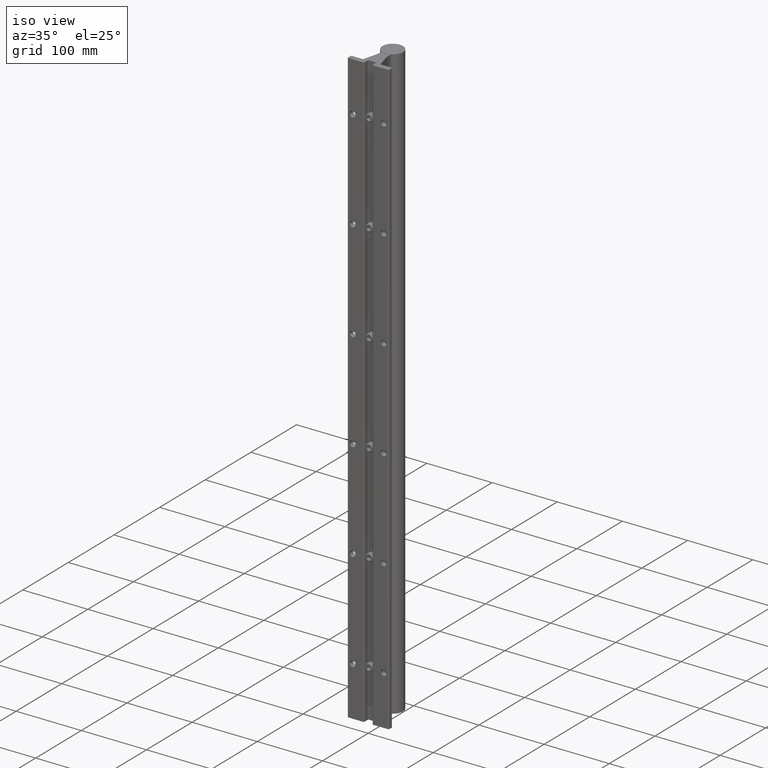
[diagram: clean part render]
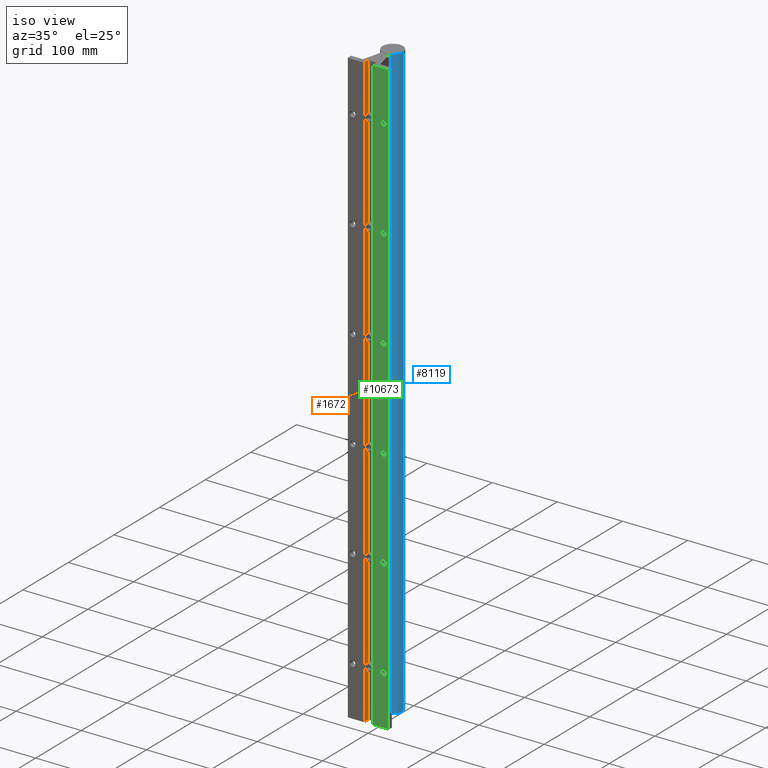
[diagram: same view with three faces highlighted in distinct colors, each labeled with its STEP entity id]
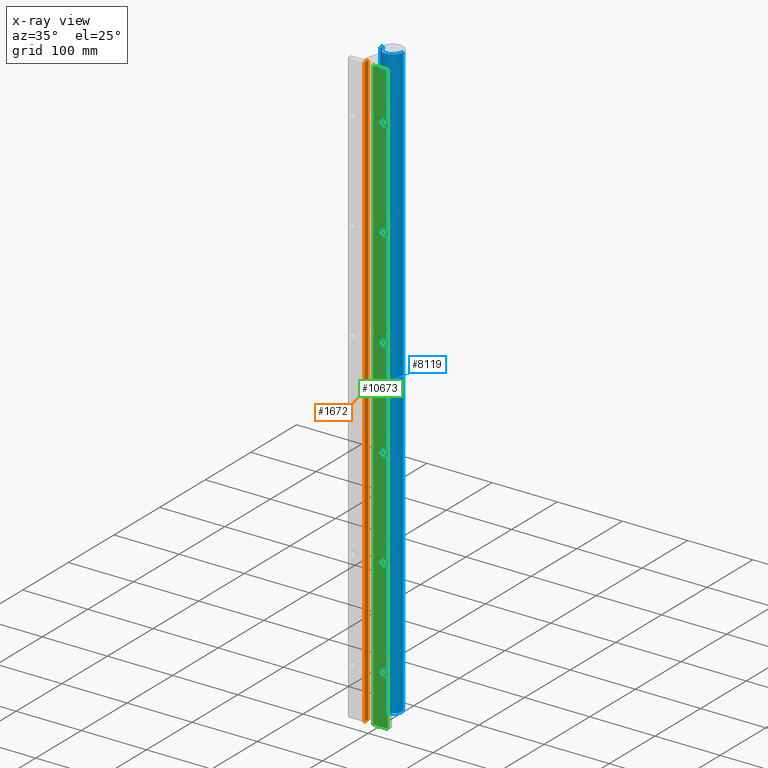
[diagram: x-ray of the same camera — body ghosted, the three highlighted faces saturated]
A machine part, iso view with three faces highlighted in distinct colors.
The next image is the same camera in x-ray (body ghosted, the three faces saturated) — at least one of them is partly hidden behind the body in this view.
Their STEP definitions:

[orange] entity #1672 — the highlighted planar face has unit normal (1, 0, 0).
#43 = LINE ( 'NONE', #7525, #6932 ) ;
#578 = AXIS2_PLACEMENT_3D ( 'NONE', #5422, #12795, #11926 ) ;
#1140 = LINE ( 'NONE', #8460, #8256 ) ;
#1496 = EDGE_CURVE ( 'NONE', #6813, #1565, #2550, .T. ) ;
#1565 = VERTEX_POINT ( 'NONE', #4723 ) ;
#1672 = ADVANCED_FACE ( 'NONE', ( #11864 ), #6512, .T. ) ;
#2550 = LINE ( 'NONE', #3567, #5666 ) ;
#2948 = ORIENTED_EDGE ( 'NONE', *, *, #1496, .F. ) ;
#3567 = CARTESIAN_POINT ( 'NONE',  ( -0.2500000000000006661, 0.06300000000000012534, -36.00000000000000000 ) ) ;
#3577 = CARTESIAN_POINT ( 'NONE',  ( -0.2500000000000009437, 0.3524999999999998690, -0.000000000000000000 ) ) ;
#3849 = CARTESIAN_POINT ( 'NONE',  ( -0.2500000000000007216, 0.06300000000000012534, 0.000000000000000000 ) ) ;
#4244 = DIRECTION ( 'NONE',  ( 0.000000000000000000, 0.000000000000000000, 1.000000000000000000 ) ) ;
#4723 = CARTESIAN_POINT ( 'NONE',  ( -0.2500000000000007216, 0.06300000000000012534, -36.00000000000000000 ) ) ;
#4849 = VERTEX_POINT ( 'NONE', #3849 ) ;
#5422 = CARTESIAN_POINT ( 'NONE',  ( -0.2500000000000006661, 0.06300000000000012534, -38.94793013549425353 ) ) ;
#5499 = DIRECTION ( 'NONE',  ( 9.436435211275530528E-16, -1.000000000000000000, 0.000000000000000000 ) ) ;
#5666 = VECTOR ( 'NONE', #5499, 39.37007874015748143 ) ;
#6110 = DIRECTION ( 'NONE',  ( -9.436435211275530528E-16, 1.000000000000000000, 0.000000000000000000 ) ) ;
#6384 = DIRECTION ( 'NONE',  ( 0.000000000000000000, 0.000000000000000000, 1.000000000000000000 ) ) ;
#6512 = PLANE ( 'NONE',  #578 ) ;
#6813 = VERTEX_POINT ( 'NONE', #7685 ) ;
#6932 = VECTOR ( 'NONE', #4244, 39.37007874015748143 ) ;
#7525 = CARTESIAN_POINT ( 'NONE',  ( -0.2500000000000006661, 0.06300000000000012534, -38.94793013549425353 ) ) ;
#7685 = CARTESIAN_POINT ( 'NONE',  ( -0.2500000000000009437, 0.3524999999999998690, -36.00000000000000000 ) ) ;
#8012 = VERTEX_POINT ( 'NONE', #3577 ) ;
#8018 = LINE ( 'NONE', #11444, #11877 ) ;
#8256 = VECTOR ( 'NONE', #6384, 39.37007874015748143 ) ;
#8298 = ORIENTED_EDGE ( 'NONE', *, *, #13762, .F. ) ;
#8302 = EDGE_CURVE ( 'NONE', #4849, #8012, #8018, .T. ) ;
#8460 = CARTESIAN_POINT ( 'NONE',  ( -0.2500000000000008882, 0.3524999999999998690, -38.94793013549425353 ) ) ;
#9807 = EDGE_LOOP ( 'NONE', ( #2948, #12320, #12628, #8298 ) ) ;
#11444 = CARTESIAN_POINT ( 'NONE',  ( -0.2500000000000006661, 0.06300000000000012534, 0.000000000000000000 ) ) ;
#11864 = FACE_OUTER_BOUND ( 'NONE', #9807, .T. ) ;
#11877 = VECTOR ( 'NONE', #6110, 39.37007874015748143 ) ;
#11926 = DIRECTION ( 'NONE',  ( -9.436435211275530528E-16, 1.000000000000000000, 0.000000000000000000 ) ) ;
#12320 = ORIENTED_EDGE ( 'NONE', *, *, #13174, .T. ) ;
#12628 = ORIENTED_EDGE ( 'NONE', *, *, #8302, .F. ) ;
#12795 = DIRECTION ( 'NONE',  ( 1.000000000000000000, 9.436435211275530528E-16, -0.000000000000000000 ) ) ;
#13174 = EDGE_CURVE ( 'NONE', #6813, #8012, #1140, .T. ) ;
#13762 = EDGE_CURVE ( 'NONE', #1565, #4849, #43, .T. ) ;

[blue] entity #8119 — the highlighted cylindrical surface (edge-blend (fillet) strip) has radius 15.875 mm, axis along (0, 0, 1).
#6 = CARTESIAN_POINT ( 'NONE',  ( -0.02459411648190821392, 1.500453750920416995, -20.81401719427926977 ) ) ;
#48 = CARTESIAN_POINT ( 'NONE',  ( 0.1814778677287109399, 1.526922140195265731, -33.04872110701938936 ) ) ;
#49 = VECTOR ( 'NONE', #8067, 39.37007874015748143 ) ;
#64 = CARTESIAN_POINT ( 'NONE',  ( 0.6250000000000000000, 2.125000000000000000, -36.00000000000000000 ) ) ;
#84 = CARTESIAN_POINT ( 'NONE',  ( 0.1862919333220978690, 1.528404107923054367, -3.024561724769853299 ) ) ;
#107 = CIRCLE ( 'NONE', #2116, 0.6250000000000000000 ) ;
#113 = CARTESIAN_POINT ( 'NONE',  ( 0.1850479680573172137, 1.528021075361903680, -32.96916109997651745 ) ) ;
#132 = CARTESIAN_POINT ( 'NONE',  ( 0.06066167076384320483, 1.502846794944431963, -14.82216240329741908 ) ) ;
#145 = CARTESIAN_POINT ( 'NONE',  ( 0.1778315041625829485, 1.525813198343475730, -3.060677572614852959 ) ) ;
#171 = CARTESIAN_POINT ( 'NONE',  ( 0.08342668330107869124, 1.505488454692520461, -33.16836352786368280 ) ) ;
#238 = CARTESIAN_POINT ( 'NONE',  ( 0.1145229482699954698, 1.510495881321176403, -32.85103756695595223 ) ) ;
#314 = CARTESIAN_POINT ( 'NONE',  ( 2.104863369175845294E-15, 1.499999999999999778, -8.812499999999998224 ) ) ;
#380 = CARTESIAN_POINT ( 'NONE',  ( 2.104863369217586292E-15, 1.499999999999999778, -20.81249999999999645 ) ) ;
#383 = CARTESIAN_POINT ( 'NONE',  ( -0.04894543661180698890, 1.501801392789007039, -8.818580238126081383 ) ) ;
#390 = CARTESIAN_POINT ( 'NONE',  ( 2.660925544370162354E-16, 1.499999999999999778, -15.18749999999999822 ) ) ;
#447 = CARTESIAN_POINT ( 'NONE',  ( -0.1144919647558832881, 1.510490298341294002, -26.85101493830943653 ) ) ;
#454 = B_SPLINE_CURVE_WITH_KNOTS ( 'NONE', 3,
 ( #380, #11027, #9973, #2464, #3558, #1557, #5848, #10116, #1636, #4638, #9836, #2615, #9066, #8935, #11096, #13240, #7807, #3705, #7951, #12230, #6669, #3642, #10050, #3763, #518, #11938, #12011, #12166, #13308, #2667, #13093, #10961, #12092, #4714, #1348, #592 ),
 .UNSPECIFIED., .F., .F.,
 ( 4, 2, 2, 2, 2, 2, 2, 2, 2, 2, 2, 2, 2, 2, 2, 2, 2, 4 ),
 ( 0.01497648399204650274, 0.01591226225003307751, 0.01684804050801964881, 0.01778381876600622358, 0.01871959702399279488, 0.01965537528197936964, 0.02059115353996594094, 0.02152693179795251224, 0.02199482092694579963, 0.02246271005593908354, 0.02339848831392565831, 0.02433426657191222961, 0.02527004482989880091, 0.02620582308788537221, 0.02714160134587194698, 0.02807737960385851828, 0.02901315786184509304, 0.02994893611983166434 ),
 .UNSPECIFIED. ) ;
#479 = CIRCLE ( 'NONE', #5792, 0.6250000000000000000 ) ;
#506 = CARTESIAN_POINT ( 'NONE',  ( -0.1626631484247957893, 1.521497087139992876, -33.09406743596872502 ) ) ;
#513 = ORIENTED_EDGE ( 'NONE', *, *, #2021, .F. ) ;
#518 = CARTESIAN_POINT ( 'NONE',  ( 0.1626825950889005112, 1.521502246388528157, -21.09403569129852229 ) ) ;
#519 = CARTESIAN_POINT ( 'NONE',  ( -0.1489585294358954093, 1.517969175251968394, -27.11453968252747515 ) ) ;
#526 = CARTESIAN_POINT ( 'NONE',  ( -0.1862881720062820601, 1.528402871582972500, -9.024611080762481308 ) ) ;
#550 = CARTESIAN_POINT ( 'NONE',  ( 0.06081332084052066406, 1.502861505559873301, -15.17778647026607963 ) ) ;
#592 = CARTESIAN_POINT ( 'NONE',  ( 1.599959613531905243E-16, 1.499999999999999778, -21.18749999999999645 ) ) ;
#593 = CARTESIAN_POINT ( 'NONE',  ( -0.08324697693491475703, 1.505464378520843916, -26.83154830422188297 ) ) ;
#599 = VERTEX_POINT ( 'NONE', #4778 ) ;
#612 = CARTESIAN_POINT ( 'NONE',  ( 0.1874995267999263471, 1.528787850299871076, -14.99380655695171782 ) ) ;
#618 = CARTESIAN_POINT ( 'NONE',  ( 0.08342668330107939900, 1.505488454692520461, -3.168363527863681028 ) ) ;
#663 = VERTEX_POINT ( 'NONE', #13354 ) ;
#680 = CARTESIAN_POINT ( 'NONE',  ( 0.1684430880567719391, 1.523106493440907316, -15.08326306370207170 ) ) ;
#731 = EDGE_CURVE ( 'NONE', #1543, #7820, #11915, .T. ) ;
#750 = CARTESIAN_POINT ( 'NONE',  ( -0.1684357713543441215, 1.523104516802842756, -3.083273727459391989 ) ) ;
#816 = CARTESIAN_POINT ( 'NONE',  ( 1.599959613531905243E-16, 1.499999999999999778, -21.18749999999999645 ) ) ;
#852 = CARTESIAN_POINT ( 'NONE',  ( 0.06066167076384375301, 1.502846794944432629, -26.82216240329741908 ) ) ;
#854 = CARTESIAN_POINT ( 'NONE',  ( -0.1874943297214829441, 1.528786215894518463, -33.01239611623176984 ) ) ;
#875 = CARTESIAN_POINT ( 'NONE',  ( -0.1754645295595811672, 1.525130727318315893, -3.066375199100363158 ) ) ;
#900 = CARTESIAN_POINT ( 'NONE',  ( -0.1625725170635188843, 1.521473615003574809, -20.90579469162878112 ) ) ;
#949 = CARTESIAN_POINT ( 'NONE',  ( -0.01246595266980239820, 1.499999999999999556, -3.187500000000000000 ) ) ;
#981 = CARTESIAN_POINT ( 'NONE',  ( -0.09422972313843534786, 1.507058787016444468, -20.83744010987373940 ) ) ;
#1023 = CARTESIAN_POINT ( 'NONE',  ( -0.02459411648190796412, 1.500453750920416995, -2.814017194279267553 ) ) ;
#1050 = CARTESIAN_POINT ( 'NONE',  ( 0.1412183994153610456, 1.516098751053328364, -2.876051371666109358 ) ) ;
#1079 = CARTESIAN_POINT ( 'NONE',  ( 0.02472302144015121189, 1.500372348573604464, -33.18626934250142568 ) ) ;
#1114 = CARTESIAN_POINT ( 'NONE',  ( 0.06066167076384303136, 1.502846794944432185, -2.822162403297417299 ) ) ;
#1173 = CARTESIAN_POINT ( 'NONE',  ( 0.1239161933662792509, 1.512343371598851016, -14.85875313872195314 ) ) ;
#1187 = CARTESIAN_POINT ( 'NONE',  ( 0.1489644149067699264, 1.517970537411539311, -27.11453358055321061 ) ) ;
#1216 = DIRECTION ( 'NONE',  ( 1.000000000000000000, 0.000000000000000000, 0.000000000000000000 ) ) ;
#1218 = CARTESIAN_POINT ( 'NONE',  ( 0.06066167076384295503, 1.502846794944431963, -8.822162403297419075 ) ) ;
#1242 = CARTESIAN_POINT ( 'NONE',  ( 0.09423836416550680772, 1.507059915304809872, -14.83744403161291281 ) ) ;
#1251 = CARTESIAN_POINT ( 'NONE',  ( 0.1626825950889007333, 1.521502246388528157, -3.094035691298532509 ) ) ;
#1282 = CARTESIAN_POINT ( 'NONE',  ( 0.1145229482699945678, 1.510495881321175959, -8.851037566955952229 ) ) ;
#1348 = CARTESIAN_POINT ( 'NONE',  ( 0.01246259667322269053, 1.499999999999999778, -21.18749999999999645 ) ) ;
#1350 = CARTESIAN_POINT ( 'NONE',  ( 0.1412183994153610456, 1.516098751053327920, -8.876051371666102696 ) ) ;
#1389 = CARTESIAN_POINT ( 'NONE',  ( 0.01246259667322270094, 1.499999999999999556, -3.187499999999999112 ) ) ;
#1431 = CARTESIAN_POINT ( 'NONE',  ( -0.08324697693491450723, 1.505464378520843471, -8.831548304221877643 ) ) ;
#1438 = CARTESIAN_POINT ( 'NONE',  ( -0.1826566454956447538, 1.527285056216175940, -15.04279000394616261 ) ) ;
#1495 = CARTESIAN_POINT ( 'NONE',  ( -2.516375772795706434E-16, 1.499999999999999778, -9.187500000000000000 ) ) ;
#1499 = CARTESIAN_POINT ( 'NONE',  ( -0.1626631484247973158, 1.521497087139993987, -9.094067435968726798 ) ) ;
#1543 = VERTEX_POINT ( 'NONE', #3711 ) ;
#1557 = CARTESIAN_POINT ( 'NONE',  ( 0.08326544728822611596, 1.505466857909387279, -20.83155738547295854 ) ) ;
#1558 = CARTESIAN_POINT ( 'NONE',  ( 1.599959613531905243E-16, 1.499999999999999778, -27.18750000000000000 ) ) ;
#1561 = CARTESIAN_POINT ( 'NONE',  ( -0.09414660927905341148, 1.507045551607758327, -9.162610892105069738 ) ) ;
#1586 = CARTESIAN_POINT ( 'NONE',  ( 0.1144850425828618651, 1.510488447917169186, -15.14899347662704798 ) ) ;
#1608 = ORIENTED_EDGE ( 'NONE', *, *, #731, .T. ) ;
#1636 = CARTESIAN_POINT ( 'NONE',  ( 0.1239161933662800696, 1.512343371598850350, -20.85875313872194070 ) ) ;
#1637 = CARTESIAN_POINT ( 'NONE',  ( -0.1684049508864615408, 1.523095464270586730, -26.91664340592992488 ) ) ;
#1643 = CARTESIAN_POINT ( 'NONE',  ( -0.1684049508864595146, 1.523095464270585619, -8.916643405929928434 ) ) ;
#1656 = B_SPLINE_CURVE_WITH_KNOTS ( 'NONE', 3,
 ( #10884, #13246, #6823, #2673, #8804, #3648, #1561, #9843, #9980, #13100, #4722, #1499, #12172, #11170, #5784, #10055, #3498, #526, #12018, #9005, #3709, #9915, #6896, #1643, #2469, #5853, #4795, #13373, #8027, #2405, #1431, #5643, #383, #4579, #8871, #13166, #3564, #7813 ),
 .UNSPECIFIED., .F., .F.,
 ( 4, 2, 2, 2, 2, 2, 2, 2, 2, 2, 2, 2, 2, 2, 2, 2, 2, 2, 4 ),
 ( 6.206233194150478023E-18, 0.0009360302495029155286, 0.001872060499005824986, 0.002808090748508734226, 0.003744120998011643466, 0.004680151247514552706, 0.005616181497017462380, 0.006084196621768915916, 0.006552211746520369452, 0.007488241996023275657, 0.008424272245526182729, 0.009360302495029088066, 0.01029633274453199514, 0.01123236299403489874, 0.01216839324353780581, 0.01310442349304071288, 0.01404045374254361649, 0.01450846886729507783, 0.01497648399204653917 ),
 .UNSPECIFIED. ) ;
#1699 = CARTESIAN_POINT ( 'NONE',  ( 1.599959613531905243E-16, 1.499999999999999778, -33.18749999999999289 ) ) ;
#1713 = CARTESIAN_POINT ( 'NONE',  ( -0.02459411648190821392, 1.500453750920416995, -26.81401719427926977 ) ) ;
#1722 = CARTESIAN_POINT ( 'NONE',  ( -0.1412242595623034169, 1.516100990710583130, -15.12393425132026259 ) ) ;
#1734 = CARTESIAN_POINT ( 'NONE',  ( 0.1871889333583507120, 1.528689915483741890, -14.98755648935759588 ) ) ;
#1743 = CARTESIAN_POINT ( 'NONE',  ( -0.6250000000000000000, 2.125000000000000000, -36.00000000000000000 ) ) ;
#1752 = ORIENTED_EDGE ( 'NONE', *, *, #4960, .T. ) ;
#1758 = LINE ( 'NONE', #2041, #2715 ) ;
#1762 = CARTESIAN_POINT ( 'NONE',  ( 0.1778736751044919517, 1.525825220299911855, -26.93941676943912711 ) ) ;
#1778 = EDGE_CURVE ( 'NONE', #2177, #3457, #8412, .T. ) ;
#1801 = CARTESIAN_POINT ( 'NONE',  ( -0.1144762695768216099, 1.510486804022667107, -3.149000234810970689 ) ) ;
#1812 = EDGE_LOOP ( 'NONE', ( #1608, #10337 ) ) ;
#1894 = CARTESIAN_POINT ( 'NONE',  ( -0.1862679332409548083, 1.528396593136011727, -20.97526876612203850 ) ) ;
#1895 = ORIENTED_EDGE ( 'NONE', *, *, #1778, .T. ) ;
#1904 = CARTESIAN_POINT ( 'NONE',  ( 0.1862919333220977025, 1.528404107923054367, -27.02456172476984975 ) ) ;
#1964 = CARTESIAN_POINT ( 'NONE',  ( -0.06072497016184297269, 1.502852283065086114, -21.17781896238872008 ) ) ;
#1973 = B_SPLINE_CURVE_WITH_KNOTS ( 'NONE', 3,
 ( #5398, #6412, #9859, #5321, #132, #11835, #1242, #10698, #1173, #12896, #2294, #6487, #10774, #5865, #4882, #3787, #4741, #1734, #612, #13329, #3868, #6778, #5809, #680, #6919, #11119, #6843, #8126, #1586, #13265, #10077, #550, #9173, #9027, #10145, #4810 ),
 .UNSPECIFIED., .F., .F.,
 ( 4, 2, 2, 2, 2, 2, 2, 2, 2, 2, 2, 2, 2, 2, 2, 2, 2, 4 ),
 ( 0.01497648399204650274, 0.01591226225003299424, 0.01684804050801948574, 0.01778381876600597725, 0.01871959702399246875, 0.01965537528197896025, 0.02059115353996545522, 0.02152693179795194672, 0.02199482092694519247, 0.02246271005593843476, 0.02339848831392509279, 0.02433426657191174736, 0.02527004482989840539, 0.02620582308788505996, 0.02714160134587171452, 0.02807737960385836909, 0.02901315786184502366, 0.02994893611983167822 ),
 .UNSPECIFIED. ) ;
#1974 = CARTESIAN_POINT ( 'NONE',  ( -0.09422972313843534786, 1.507058787016444468, -32.83744010987374651 ) ) ;
#1999 = CARTESIAN_POINT ( 'NONE',  ( -0.03078065175070641979, 1.500728951955551560, -14.81494072458079891 ) ) ;
#2002 = FACE_BOUND ( 'NONE', #1812, .T. ) ;
#2005 = CARTESIAN_POINT ( 'NONE',  ( -0.1489585294358967971, 1.517969175251968394, -3.114539682527466269 ) ) ;
#2021 = EDGE_CURVE ( 'NONE', #4800, #599, #10223, .T. ) ;
#2041 = CARTESIAN_POINT ( 'NONE',  ( 0.6250000000000000000, 2.125000000000000000, -36.00000000000000000 ) ) ;
#2046 = CARTESIAN_POINT ( 'NONE',  ( -0.01228886251958351966, 1.500090509223233726, -32.81280101910731872 ) ) ;
#2077 = CARTESIAN_POINT ( 'NONE',  ( -0.08340283180399155061, 1.505484648022699767, -3.168377768821286189 ) ) ;
#2106 = CARTESIAN_POINT ( 'NONE',  ( -0.03078065175070646489, 1.500728951955552004, -20.81494072458079359 ) ) ;
#2116 = AXIS2_PLACEMENT_3D ( 'NONE', #13397, #7846, #6784 ) ;
#2140 = CARTESIAN_POINT ( 'NONE',  ( 0.1862919333220977025, 1.528404107923054367, -33.02456172476983909 ) ) ;
#2164 = CARTESIAN_POINT ( 'NONE',  ( -0.1144919647558832881, 1.510490298341294002, -20.85101493830943298 ) ) ;
#2174 = CARTESIAN_POINT ( 'NONE',  ( 0.02472302144015121189, 1.500372348573604464, -27.18626934250143279 ) ) ;
#2177 = VERTEX_POINT ( 'NONE', #13556 ) ;
#2180 = ORIENTED_EDGE ( 'NONE', *, *, #13288, .T. ) ;
#2200 = CARTESIAN_POINT ( 'NONE',  ( 0.1814359446705737788, 1.526909416761731864, -32.95113896308209434 ) ) ;
#2233 = CARTESIAN_POINT ( 'NONE',  ( 0.1814778677287106901, 1.526922140195265287, -3.048721107019396470 ) ) ;
#2271 = CARTESIAN_POINT ( 'NONE',  ( 0.1489644149067699264, 1.517970537411539311, -33.11453358055319285 ) ) ;
#2294 = CARTESIAN_POINT ( 'NONE',  ( 0.1490469246178120211, 1.517991937236966571, -14.88559248456641626 ) ) ;
#2306 = CARTESIAN_POINT ( 'NONE',  ( 2.104863369175845294E-15, 1.499999999999999778, -2.812499999999999556 ) ) ;
#2336 = CARTESIAN_POINT ( 'NONE',  ( 0.08326544728822611596, 1.505466857909387279, -32.83155738547296210 ) ) ;
#2373 = CARTESIAN_POINT ( 'NONE',  ( 0.1683691204686796616, 1.523085304884129965, -2.916566125626499417 ) ) ;
#2377 = CARTESIAN_POINT ( 'NONE',  ( 0.1412256569499229231, 1.516101327828609291, -27.12393255634335532 ) ) ;
#2402 = CARTESIAN_POINT ( 'NONE',  ( 0.1875009447545541996, 1.528788296225969789, -33.01234385936819393 ) ) ;
#2405 = CARTESIAN_POINT ( 'NONE',  ( -0.09422972313843684666, 1.507058787016444690, -8.837440109873746508 ) ) ;
#2464 = CARTESIAN_POINT ( 'NONE',  ( 0.04893734902065480230, 1.501799586818423515, -20.81857394502733527 ) ) ;
#2469 = CARTESIAN_POINT ( 'NONE',  ( -0.1625725170635182737, 1.521473615003574809, -8.905794691628784676 ) ) ;
#2475 = CARTESIAN_POINT ( 'NONE',  ( -0.01246595266980239126, 1.500000000000000222, -15.18750000000000000 ) ) ;
#2534 = CARTESIAN_POINT ( 'NONE',  ( -0.08340283180399239715, 1.505484648022699767, -33.16837776882128708 ) ) ;
#2551 = DIRECTION ( 'NONE',  ( 0.000000000000000000, 0.000000000000000000, 1.000000000000000000 ) ) ;
#2583 = CARTESIAN_POINT ( 'NONE',  ( -8.021753457531621398E-17, 1.499999999999999778, -3.187500000000000000 ) ) ;
#2615 = CARTESIAN_POINT ( 'NONE',  ( 0.1625736029291391938, 1.521474029036034237, -20.90579867858489038 ) ) ;
#2616 = CARTESIAN_POINT ( 'NONE',  ( -0.04877516070255829422, 1.501789544060420978, -27.18146019433156724 ) ) ;
#2637 = CARTESIAN_POINT ( 'NONE',  ( 0.04884150254016390164, 1.501794224717706516, -3.181444215599908532 ) ) ;
#2667 = CARTESIAN_POINT ( 'NONE',  ( 0.09415655431507595485, 1.507047076309236955, -21.16260511779192299 ) ) ;
#2669 = CARTESIAN_POINT ( 'NONE',  ( -0.1240412340268043645, 1.512369550819042452, -27.14113030291309769 ) ) ;
#2673 = CARTESIAN_POINT ( 'NONE',  ( -0.04877516070255853015, 1.501789544060420978, -9.181460194331569014 ) ) ;
#2715 = VECTOR ( 'NONE', #9203, 39.37007874015748143 ) ;
#2746 = CARTESIAN_POINT ( 'NONE',  ( 0.09415655431507548301, 1.507047076309236733, -9.162605117791924769 ) ) ;
#2755 = CARTESIAN_POINT ( 'NONE',  ( -0.02470970214299086226, 1.500372335455767203, -15.18626929174830664 ) ) ;
#2832 = CYLINDRICAL_SURFACE ( 'NONE', #7391, 0.6250000000000000000 ) ;
#2898 = CARTESIAN_POINT ( 'NONE',  ( -0.1875056307728601435, 1.528789769910345653, -2.987776015223697623 ) ) ;
#2961 = CARTESIAN_POINT ( 'NONE',  ( -0.1238835012831705218, 1.512336695819153087, -14.85872414660636132 ) ) ;
#2971 = CARTESIAN_POINT ( 'NONE',  ( -0.1411945863701330184, 1.516093163973553093, -2.876023883662841563 ) ) ;
#2995 = CARTESIAN_POINT ( 'NONE',  ( -0.1412242595623033614, 1.516100990710583130, -21.12393425132026081 ) ) ;
#3005 = CARTESIAN_POINT ( 'NONE',  ( -0.006141733518803804519, 1.499999999999999778, -32.81249999999998579 ) ) ;
#3076 = CARTESIAN_POINT ( 'NONE',  ( -0.1490254474431879084, 1.517986543225292584, -32.88556277072541434 ) ) ;
#3100 = CARTESIAN_POINT ( 'NONE',  ( -0.09414660927905323107, 1.507045551607758327, -3.162610892105069293 ) ) ;
#3126 = CARTESIAN_POINT ( 'NONE',  ( -0.1489585294358954093, 1.517969175251968394, -21.11453968252746805 ) ) ;
#3134 = CARTESIAN_POINT ( 'NONE',  ( 0.1859612462101690455, 1.528305917093536692, -2.975242119700877819 ) ) ;
#3169 = CARTESIAN_POINT ( 'NONE',  ( 0.1684430880567719391, 1.523106493440907983, -9.083263063702077034 ) ) ;
#3180 = ORIENTED_EDGE ( 'NONE', *, *, #12802, .T. ) ;
#3204 = CARTESIAN_POINT ( 'NONE',  ( -0.1814442532110329687, 1.526911920355986219, -20.95115985401666592 ) ) ;
#3239 = CARTESIAN_POINT ( 'NONE',  ( 0.08326544728822543595, 1.505466857909386835, -8.831557385472965649 ) ) ;
#3293 = CARTESIAN_POINT ( 'NONE',  ( 0.01246259667322269053, 1.499999999999999778, -33.18749999999999289 ) ) ;
#3356 = CARTESIAN_POINT ( 'NONE',  ( 0.1778736751044912578, 1.525825220299911411, -8.939416769439128885 ) ) ;
#3395 = CARTESIAN_POINT ( 'NONE',  ( -2.516375772795706434E-16, 1.499999999999999778, -9.187500000000000000 ) ) ;
#3428 = CARTESIAN_POINT ( 'NONE',  ( 0.1625736029291391938, 1.521474029036034237, -32.90579867858489393 ) ) ;
#3457 = VERTEX_POINT ( 'NONE', #4733 ) ;
#3496 = CARTESIAN_POINT ( 'NONE',  ( -0.01228886251958351966, 1.500090509223233726, -26.81280101910732583 ) ) ;
#3498 = CARTESIAN_POINT ( 'NONE',  ( -0.1826566454956445318, 1.527285056216175718, -9.042790003946162614 ) ) ;
#3504 = CARTESIAN_POINT ( 'NONE',  ( -0.1775378814430579322, 1.525743111221850024, -15.06061718406949446 ) ) ;
#3558 = CARTESIAN_POINT ( 'NONE',  ( 0.06066167076384375301, 1.502846794944432629, -20.82216240329741908 ) ) ;
#3560 = CARTESIAN_POINT ( 'NONE',  ( -0.06064342069550381770, 1.502845018522943610, -26.82215622443930769 ) ) ;
#3564 = CARTESIAN_POINT ( 'NONE',  ( -0.006141733518803776763, 1.500000000000000222, -8.812500000000001776 ) ) ;
#3572 = CARTESIAN_POINT ( 'NONE',  ( -0.1862881720062821433, 1.528402871582972500, -15.02461108076247598 ) ) ;
#3633 = CARTESIAN_POINT ( 'NONE',  ( -0.1754645295595816112, 1.525130727318315449, -33.06637519910036360 ) ) ;
#3639 = ORIENTED_EDGE ( 'NONE', *, *, #5082, .T. ) ;
#3642 = CARTESIAN_POINT ( 'NONE',  ( 0.1814778677287109399, 1.526922140195265731, -21.04872110701938936 ) ) ;
#3645 = CARTESIAN_POINT ( 'NONE',  ( 0.01246259667322273390, 1.499999999999999778, -9.187500000000001776 ) ) ;
#3648 = CARTESIAN_POINT ( 'NONE',  ( -0.08340283180399195306, 1.505484648022700434, -9.168377768821285301 ) ) ;
#3705 = CARTESIAN_POINT ( 'NONE',  ( 0.1871889333583505732, 1.528689915483741224, -20.98755648935759055 ) ) ;
#3707 = CARTESIAN_POINT ( 'NONE',  ( -0.1814442532110329687, 1.526911920355986219, -26.95115985401666236 ) ) ;
#3709 = CARTESIAN_POINT ( 'NONE',  ( -0.1862679332409551414, 1.528396593136012394, -8.975268766122040276 ) ) ;
#3711 = CARTESIAN_POINT ( 'NONE',  ( 1.599959613531905243E-16, 1.499999999999999778, -33.18749999999999289 ) ) ;
#3714 = CARTESIAN_POINT ( 'NONE',  ( -0.09414660927905407761, 1.507045551607758771, -15.16261089210506796 ) ) ;
#3756 = VERTEX_POINT ( 'NONE', #3395 ) ;
#3763 = CARTESIAN_POINT ( 'NONE',  ( 0.1684430880567699407, 1.523106493440907316, -21.08326306370207703 ) ) ;
#3765 = CARTESIAN_POINT ( 'NONE',  ( -0.1490254474431879084, 1.517986543225292584, -26.88556277072541434 ) ) ;
#3773 = DIRECTION ( 'NONE',  ( 1.000000000000000000, 0.000000000000000000, 0.000000000000000000 ) ) ;
#3787 = CARTESIAN_POINT ( 'NONE',  ( 0.1850479680573172692, 1.528021075361904790, -14.96916109997652633 ) ) ;
#3821 = CARTESIAN_POINT ( 'NONE',  ( 0.1683691204686804388, 1.523085304884129965, -26.91656612562650608 ) ) ;
#3852 = CARTESIAN_POINT ( 'NONE',  ( -0.006141733518803761151, 1.500000000000000444, -14.81250000000000533 ) ) ;
#3868 = CARTESIAN_POINT ( 'NONE',  ( 0.1862919333220981466, 1.528404107923054145, -15.02456172476984442 ) ) ;
#3873 = CARTESIAN_POINT ( 'NONE',  ( 2.104863369217586292E-15, 1.499999999999999778, -32.81249999999999289 ) ) ;
#3895 = CARTESIAN_POINT ( 'NONE',  ( 0.08326544728822611596, 1.505466857909387279, -26.83155738547296210 ) ) ;
#3897 = CARTESIAN_POINT ( 'NONE',  ( -0.1875056307728600602, 1.528789769910345431, -32.98777601522369451 ) ) ;
#3920 = CARTESIAN_POINT ( 'NONE',  ( -0.1862881720062821989, 1.528402871582972722, -3.024611080762479531 ) ) ;
#3966 = CARTESIAN_POINT ( 'NONE',  ( -0.1625725170635190786, 1.521473615003574809, -14.90579469162878290 ) ) ;
#4046 = CARTESIAN_POINT ( 'NONE',  ( -0.06064342069550378994, 1.502845018522944498, -2.822156224439325456 ) ) ;
#4068 = CARTESIAN_POINT ( 'NONE',  ( -0.1490254474431879084, 1.517986543225292584, -20.88556277072541079 ) ) ;
#4116 = CARTESIAN_POINT ( 'NONE',  ( -0.08324697693491453498, 1.505464378520843249, -2.831548304221876755 ) ) ;
#4141 = CARTESIAN_POINT ( 'NONE',  ( 1.599959613531905243E-16, 1.499999999999999778, -21.18749999999999645 ) ) ;
#4152 = CARTESIAN_POINT ( 'NONE',  ( 0.1626825950889005112, 1.521502246388528157, -27.09403569129854006 ) ) ;
#4181 = CARTESIAN_POINT ( 'NONE',  ( -0.1412242595623032504, 1.516100990710582463, -3.123934251320257705 ) ) ;
#4205 = CARTESIAN_POINT ( 'NONE',  ( -0.1684357713543448432, 1.523104516802843422, -21.08327372745939243 ) ) ;
#4212 = CARTESIAN_POINT ( 'NONE',  ( 0.02459768697059163886, 1.500365248393467965, -2.813706598753979993 ) ) ;
#4249 = CARTESIAN_POINT ( 'NONE',  ( 0.1683691204686794118, 1.523085304884130187, -8.916566125626498973 ) ) ;
#4260 = VERTEX_POINT ( 'NONE', #8786 ) ;
#4277 = CARTESIAN_POINT ( 'NONE',  ( -0.1875056307728600602, 1.528789769910345431, -20.98777601522369096 ) ) ;
#4283 = CARTESIAN_POINT ( 'NONE',  ( 0.1489644149067702872, 1.517970537411538867, -3.114533580553195957 ) ) ;
#4311 = CARTESIAN_POINT ( 'NONE',  ( 0.1489644149067703149, 1.517970537411539311, -9.114533580553198178 ) ) ;
#4350 = VERTEX_POINT ( 'NONE', #12856 ) ;
#4370 = CARTESIAN_POINT ( 'NONE',  ( 0.1683691204686804388, 1.523085304884129965, -32.91656612562649542 ) ) ;
#4401 = CARTESIAN_POINT ( 'NONE',  ( 0.04893734902065541292, 1.501799586818422849, -2.818573945027333494 ) ) ;
#4434 = CARTESIAN_POINT ( 'NONE',  ( 0.1490469246178113827, 1.517991937236965461, -32.88559248456640205 ) ) ;
#4508 = CARTESIAN_POINT ( 'NONE',  ( -0.1826566454956448093, 1.527285056216176606, -27.04279000394616617 ) ) ;
#4522 = CARTESIAN_POINT ( 'NONE',  ( -0.1489585294358965473, 1.517969175251968394, -15.11453968252746627 ) ) ;
#4550 = CARTESIAN_POINT ( 'NONE',  ( 0.1144850425828623647, 1.510488447917169186, -3.148993476627046650 ) ) ;
#4574 = CARTESIAN_POINT ( 'NONE',  ( -0.006141733518803804519, 1.499999999999999778, -26.81250000000000000 ) ) ;
#4579 = CARTESIAN_POINT ( 'NONE',  ( -0.03078065175070645448, 1.500728951955552670, -8.814940724580798914 ) ) ;
#4629 = CARTESIAN_POINT ( 'NONE',  ( -0.04877516070255829422, 1.501789544060420978, -33.18146019433157079 ) ) ;
#4638 = CARTESIAN_POINT ( 'NONE',  ( 0.1412183994153609345, 1.516098751053327920, -20.87605137166611158 ) ) ;
#4648 = CARTESIAN_POINT ( 'NONE',  ( -0.1240412340268043506, 1.512369550819042452, -15.14113030291309769 ) ) ;
#4714 = CARTESIAN_POINT ( 'NONE',  ( 0.02472302144015121189, 1.500372348573604464, -21.18626934250142568 ) ) ;
#4717 = CARTESIAN_POINT ( 'NONE',  ( -0.01246595266980238953, 1.500000000000000222, -27.18750000000000000 ) ) ;
#4722 = CARTESIAN_POINT ( 'NONE',  ( -0.1489585294358970469, 1.517969175251968394, -9.114539682527466269 ) ) ;
#4728 = CARTESIAN_POINT ( 'NONE',  ( -0.06072497016184224411, 1.502852283065086114, -15.17781896238872719 ) ) ;
#4733 = CARTESIAN_POINT ( 'NONE',  ( 1.599959613531905243E-16, 1.499999999999999778, -27.18750000000000000 ) ) ;
#4741 = CARTESIAN_POINT ( 'NONE',  ( 0.1859612462101690733, 1.528305917093536914, -14.97524211970088182 ) ) ;
#4769 = EDGE_CURVE ( 'NONE', #599, #4350, #479, .T. ) ;
#4774 = ORIENTED_EDGE ( 'NONE', *, *, #8805, .T. ) ;
#4778 = CARTESIAN_POINT ( 'NONE',  ( -0.6250000000000000000, 2.125000000000000000, 0.000000000000000000 ) ) ;
#4790 = CARTESIAN_POINT ( 'NONE',  ( -0.1754645295595816112, 1.525130727318315449, -27.06637519910036005 ) ) ;
#4795 = CARTESIAN_POINT ( 'NONE',  ( -0.1411945863701334347, 1.516093163973554203, -8.876023883662846004 ) ) ;
#4800 = VERTEX_POINT ( 'NONE', #6757 ) ;
#4810 = CARTESIAN_POINT ( 'NONE',  ( 2.660925544370162354E-16, 1.499999999999999778, -15.18749999999999822 ) ) ;
#4822 = CARTESIAN_POINT ( 'NONE',  ( 0.06081332084052078202, 1.502861505559873301, -3.177786470266078300 ) ) ;
#4841 = CARTESIAN_POINT ( 'NONE',  ( 2.104863369217586292E-15, 1.499999999999999778, -20.81249999999999645 ) ) ;
#4870 = CARTESIAN_POINT ( 'NONE',  ( -0.1411945863701332404, 1.516093163973553537, -14.87602388366284423 ) ) ;
#4882 = CARTESIAN_POINT ( 'NONE',  ( 0.1814359446705738621, 1.526909416761731197, -14.95113896308210499 ) ) ;
#4950 = CARTESIAN_POINT ( 'NONE',  ( -0.1814442532110334128, 1.526911920355986219, -14.95115985401665881 ) ) ;
#4960 = EDGE_CURVE ( 'NONE', #11113, #4350, #1758, .T. ) ;
#4996 = CARTESIAN_POINT ( 'NONE',  ( 2.104863369217586292E-15, 1.499999999999999778, -26.81250000000000000 ) ) ;
#4999 = CARTESIAN_POINT ( 'NONE',  ( -0.02459411648190821392, 1.500453750920416995, -32.81401719427926622 ) ) ;
#5024 = CARTESIAN_POINT ( 'NONE',  ( -0.1684049508864594313, 1.523095464270586286, -14.91664340592993021 ) ) ;
#5030 = CARTESIAN_POINT ( 'NONE',  ( -0.1826566454956447816, 1.527285056216176606, -3.042790003946163058 ) ) ;
#5063 = B_SPLINE_CURVE_WITH_KNOTS ( 'NONE', 3,
 ( #1558, #4717, #13094, #2616, #12013, #11163, #6819, #5778, #2669, #10052, #519, #5707, #8020, #4790, #7732, #9067, #4508, #7952, #6672, #5638, #13309, #3707, #9974, #1637, #13161, #3765, #5850, #10117, #447, #8797, #593, #3560, #12309, #11237, #1713, #3496, #4574, #7809 ),
 .UNSPECIFIED., .F., .F.,
 ( 4, 2, 2, 2, 2, 2, 2, 2, 2, 2, 2, 2, 2, 2, 2, 2, 2, 2, 4 ),
 ( 3.946041195496750264E-18, 0.0009360302495032811216, 0.001872060499006558340, 0.002808090748509835775, 0.003744120998013112777, 0.004680151247516389779, 0.005616181497019668081, 0.006084196621771151975, 0.006552211746522635868, 0.007488241996025279262, 0.008424272245527922656, 0.009360302495030567785, 0.01029633274453321291, 0.01123236299403585804, 0.01216839324353850491, 0.01310442349304115003, 0.01404045374254379516, 0.01450846886729514722, 0.01497648399204650274 ),
 .UNSPECIFIED. ) ;
#5066 = CARTESIAN_POINT ( 'NONE',  ( -0.1625725170635188843, 1.521473615003574809, -32.90579469162877757 ) ) ;
#5082 = EDGE_CURVE ( 'NONE', #8741, #10239, #9650, .T. ) ;
#5090 = FACE_BOUND ( 'NONE', #12388, .T. ) ;
#5095 = CARTESIAN_POINT ( 'NONE',  ( -0.1684049508864594591, 1.523095464270586286, -2.916643405929928434 ) ) ;
#5123 = CARTESIAN_POINT ( 'NONE',  ( -0.1240412340268043645, 1.512369550819042452, -21.14113030291309414 ) ) ;
#5163 = CARTESIAN_POINT ( 'NONE',  ( -0.1778776341636339742, 1.525826531896596450, -14.93943518742386800 ) ) ;
#5169 = CARTESIAN_POINT ( 'NONE',  ( -0.1811314555181802455, 1.526819497210730736, -3.048841971435121589 ) ) ;
#5238 = CARTESIAN_POINT ( 'NONE',  ( -0.1775378814430574326, 1.525743111221849801, -3.060617184069491348 ) ) ;
#5268 = CARTESIAN_POINT ( 'NONE',  ( 0.1871889333583506843, 1.528689915483741446, -2.987556489357592771 ) ) ;
#5300 = CARTESIAN_POINT ( 'NONE',  ( 0.02459768697059195458, 1.500365248393467743, -8.813706598753981325 ) ) ;
#5321 = CARTESIAN_POINT ( 'NONE',  ( 0.04893734902065473291, 1.501799586818423515, -14.81857394502732994 ) ) ;
#5331 = CARTESIAN_POINT ( 'NONE',  ( 0.08326544728822556085, 1.505466857909386391, -2.831557385472966093 ) ) ;
#5333 = CARTESIAN_POINT ( 'NONE',  ( 0.01246259667322269053, 1.499999999999999778, -27.18750000000000355 ) ) ;
#5366 = CARTESIAN_POINT ( 'NONE',  ( 0.09423836416550683548, 1.507059915304809428, -8.837444031612912809 ) ) ;
#5398 = CARTESIAN_POINT ( 'NONE',  ( 2.104863369136091438E-15, 1.499999999999999778, -14.81249999999999822 ) ) ;
#5409 = CARTESIAN_POINT ( 'NONE',  ( 0.09423836416550658568, 1.507059915304809650, -2.837444031612914142 ) ) ;
#5412 = CARTESIAN_POINT ( 'NONE',  ( 0.1240444071764290612, 1.512370206240939652, -27.14112742380907051 ) ) ;
#5434 = CARTESIAN_POINT ( 'NONE',  ( 0.1625736029291401097, 1.521474029036034903, -8.905798678584895711 ) ) ;
#5492 = CARTESIAN_POINT ( 'NONE',  ( 0.1859612462101690455, 1.528305917093536692, -8.975242119700878263 ) ) ;
#5525 = CARTESIAN_POINT ( 'NONE',  ( 0.1850479680573174635, 1.528021075361904568, -2.969161099976532991 ) ) ;
#5561 = CARTESIAN_POINT ( 'NONE',  ( 0.1490469246178126594, 1.517991937236966349, -8.885592484566416260 ) ) ;
#5589 = VERTEX_POINT ( 'NONE', #4841 ) ;
#5638 = CARTESIAN_POINT ( 'NONE',  ( -0.1875056307728600602, 1.528789769910345431, -26.98777601522368386 ) ) ;
#5643 = CARTESIAN_POINT ( 'NONE',  ( -0.06064342069550376219, 1.502845018522944498, -8.822156224439325456 ) ) ;
#5707 = CARTESIAN_POINT ( 'NONE',  ( -0.1626631484247957893, 1.521497087139992876, -27.09406743596872147 ) ) ;
#5778 = CARTESIAN_POINT ( 'NONE',  ( -0.1144762695768221372, 1.510486804022667329, -27.14900023481097691 ) ) ;
#5784 = CARTESIAN_POINT ( 'NONE',  ( -0.1775378814430574881, 1.525743111221849357, -9.060617184069490904 ) ) ;
#5792 = AXIS2_PLACEMENT_3D ( 'NONE', #7815, #2551, #3773 ) ;
#5809 = CARTESIAN_POINT ( 'NONE',  ( 0.1778315041625831150, 1.525813198343475730, -15.06067757261485518 ) ) ;
#5848 = CARTESIAN_POINT ( 'NONE',  ( 0.09423836416550801509, 1.507059915304809872, -20.83744403161291459 ) ) ;
#5850 = CARTESIAN_POINT ( 'NONE',  ( -0.1411945863701327686, 1.516093163973553093, -26.87602388366283890 ) ) ;
#5853 = CARTESIAN_POINT ( 'NONE',  ( -0.1490254474431869924, 1.517986543225292806, -8.885562770725424997 ) ) ;
#5865 = CARTESIAN_POINT ( 'NONE',  ( 0.1778736751044912301, 1.525825220299911189, -14.93941676943912533 ) ) ;
#5911 = CARTESIAN_POINT ( 'NONE',  ( 0.02472302144015134720, 1.500372348573604686, -9.186269342501436341 ) ) ;
#5955 = CARTESIAN_POINT ( 'NONE',  ( 0.1814359446705737788, 1.526909416761731864, -26.95113896308210144 ) ) ;
#5988 = CARTESIAN_POINT ( 'NONE',  ( -0.04894543661180715544, 1.501801392789006373, -2.818580238126081383 ) ) ;
#6025 = CARTESIAN_POINT ( 'NONE',  ( 0.1850479680573172137, 1.528021075361903680, -26.96916109997652455 ) ) ;
#6062 = CARTESIAN_POINT ( 'NONE',  ( 2.104863369175845294E-15, 1.499999999999999778, -2.812499999999999556 ) ) ;
#6089 = CARTESIAN_POINT ( 'NONE',  ( -0.1684049508864615408, 1.523095464270586730, -20.91664340592993199 ) ) ;
#6098 = CARTESIAN_POINT ( 'NONE',  ( 0.1814778677287109399, 1.526922140195265731, -27.04872110701939647 ) ) ;
#6126 = CARTESIAN_POINT ( 'NONE',  ( -0.04877516070255830116, 1.501789544060420978, -3.181460194331568569 ) ) ;
#6175 = CARTESIAN_POINT ( 'NONE',  ( -0.02459411648190800576, 1.500453750920416995, -14.81401719427926622 ) ) ;
#6182 = CARTESIAN_POINT ( 'NONE',  ( -0.1144919647558848841, 1.510490298341294446, -2.851014938309432090 ) ) ;
#6228 = CARTESIAN_POINT ( 'NONE',  ( -0.03078065175070646489, 1.500728951955552004, -32.81494072458078648 ) ) ;
#6260 = CARTESIAN_POINT ( 'NONE',  ( -0.1238835012831702026, 1.512336695819152865, -2.858724146606364425 ) ) ;
#6293 = CARTESIAN_POINT ( 'NONE',  ( 0.1144850425828632390, 1.510488447917169852, -27.14899347662705154 ) ) ;
#6328 = CARTESIAN_POINT ( 'NONE',  ( 0.1778315041625817550, 1.525813198343475507, -33.06067757261484985 ) ) ;
#6349 = CARTESIAN_POINT ( 'NONE',  ( -0.08324697693491475703, 1.505464378520843916, -20.83154830422187942 ) ) ;
#6391 = CARTESIAN_POINT ( 'NONE',  ( 1.599959613531905243E-16, 1.499999999999999778, -33.18749999999999289 ) ) ;
#6412 = CARTESIAN_POINT ( 'NONE',  ( 0.01228016016853954520, 1.499999999999999556, -14.81249999999999822 ) ) ;
#6420 = CARTESIAN_POINT ( 'NONE',  ( 0.1684430880567717448, 1.523106493440907983, -3.083263063702075257 ) ) ;
#6458 = CARTESIAN_POINT ( 'NONE',  ( 0.1240444071764290612, 1.512370206240939652, -33.14112742380906695 ) ) ;
#6487 = CARTESIAN_POINT ( 'NONE',  ( 0.1625736029291394991, 1.521474029036034459, -14.90579867858489571 ) ) ;
#6498 = CARTESIAN_POINT ( 'NONE',  ( 0.1145229482699943596, 1.510495881321176403, -2.851037566955953118 ) ) ;
#6527 = CARTESIAN_POINT ( 'NONE',  ( 0.09415655431507595485, 1.507047076309236955, -33.16260511779191944 ) ) ;
#6592 = CARTESIAN_POINT ( 'NONE',  ( 0.1871889333583505732, 1.528689915483741224, -32.98755648935758700 ) ) ;
#6669 = CARTESIAN_POINT ( 'NONE',  ( 0.1862919333220977025, 1.528404107923054367, -21.02456172476984264 ) ) ;
#6672 = CARTESIAN_POINT ( 'NONE',  ( -0.1874943297214829441, 1.528786215894518463, -27.01239611623176984 ) ) ;
#6684 = CARTESIAN_POINT ( 'NONE',  ( -0.1626631484247967607, 1.521497087139992432, -15.09406743596871614 ) ) ;
#6738 = CARTESIAN_POINT ( 'NONE',  ( -0.09414660927905388332, 1.507045551607758105, -33.16261089210505730 ) ) ;
#6757 = CARTESIAN_POINT ( 'NONE',  ( -0.6250000000000000000, 2.125000000000000000, -36.00000000000000000 ) ) ;
#6778 = CARTESIAN_POINT ( 'NONE',  ( 0.1814778677287114395, 1.526922140195266397, -15.04872110701939114 ) ) ;
#6784 = DIRECTION ( 'NONE',  ( 1.000000000000000000, 0.000000000000000000, 0.000000000000000000 ) ) ;
#6819 = CARTESIAN_POINT ( 'NONE',  ( -0.09414660927905388332, 1.507045551607758105, -27.16261089210506796 ) ) ;
#6823 = CARTESIAN_POINT ( 'NONE',  ( -0.02470970214299097675, 1.500372335455767647, -9.186269291748306642 ) ) ;
#6843 = CARTESIAN_POINT ( 'NONE',  ( 0.1412256569499242553, 1.516101327828609513, -15.12393255634335176 ) ) ;
#6896 = CARTESIAN_POINT ( 'NONE',  ( -0.1778776341636340574, 1.525826531896596672, -8.939435187423869777 ) ) ;
#6919 = CARTESIAN_POINT ( 'NONE',  ( 0.1626825950889013994, 1.521502246388528157, -15.09403569129852585 ) ) ;
#6973 = CARTESIAN_POINT ( 'NONE',  ( -0.08340283180399171714, 1.505484648022699767, -15.16837776882127820 ) ) ;
#7014 = CARTESIAN_POINT ( 'NONE',  ( 0.01228016016853967357, 1.499999999999999556, -26.81250000000000355 ) ) ;
#7041 = CARTESIAN_POINT ( 'NONE',  ( -0.1144919647558850784, 1.510490298341294002, -14.85101493830943475 ) ) ;
#7046 = FACE_BOUND ( 'NONE', #11888, .T. ) ;
#7048 = CARTESIAN_POINT ( 'NONE',  ( -0.1778776341636340297, 1.525826531896596450, -2.939435187423868889 ) ) ;
#7066 = B_SPLINE_CURVE_WITH_KNOTS ( 'NONE', 3,
 ( #314, #11879, #5300, #9560, #1218, #3239, #5366, #1282, #10879, #1350, #5561, #5434, #4249, #3356, #9837, #9694, #5492, #8467, #7528, #7661, #8537, #12733, #10671, #3169, #9628, #4311, #7394, #11738, #8662, #2746, #9002, #13241, #8936, #5911, #3645, #1495 ),
 .UNSPECIFIED., .F., .F.,
 ( 4, 2, 2, 2, 2, 2, 2, 2, 2, 2, 2, 2, 2, 2, 2, 2, 2, 4 ),
 ( 0.01497648399204653917, 0.01591226225003311220, 0.01684804050801968350, 0.01778381876600625480, 0.01871959702399282957, 0.01965537528197940087, 0.02059115353996597217, 0.02152693179795254347, 0.02199482092694587249, 0.02246271005593919803, 0.02339848831392576933, 0.02433426657191233716, 0.02527004482989891193, 0.02620582308788547976, 0.02714160134587204759, 0.02807737960385861542, 0.02901315786184518672, 0.02994893611983175802 ),
 .UNSPECIFIED. ) ;
#7072 = EDGE_CURVE ( 'NONE', #3756, #13660, #1656, .T. ) ;
#7110 = CARTESIAN_POINT ( 'NONE',  ( -0.1862679332409552524, 1.528396593136012394, -14.97526876612203850 ) ) ;
#7146 = CARTESIAN_POINT ( 'NONE',  ( -0.1775378814430579877, 1.525743111221850024, -21.06061718406948557 ) ) ;
#7186 = CARTESIAN_POINT ( 'NONE',  ( -0.01228886251958349538, 1.500090509223234392, -14.81280101910732760 ) ) ;
#7196 = CARTESIAN_POINT ( 'NONE',  ( -0.02470970214299077553, 1.500372335455766981, -3.186269291748306642 ) ) ;
#7225 = CARTESIAN_POINT ( 'NONE',  ( -0.006141733518803804519, 1.499999999999999778, -20.81249999999999645 ) ) ;
#7274 = CARTESIAN_POINT ( 'NONE',  ( -8.021753457531621398E-17, 1.499999999999999778, -3.187500000000000000 ) ) ;
#7286 = CARTESIAN_POINT ( 'NONE',  ( -0.04877516070255829422, 1.501789544060420978, -21.18146019433156368 ) ) ;
#7295 = CARTESIAN_POINT ( 'NONE',  ( 0.1145229482699954698, 1.510495881321176403, -26.85103756695595578 ) ) ;
#7322 = CARTESIAN_POINT ( 'NONE',  ( -0.1240412340268041702, 1.512369550819041786, -3.141130302913091032 ) ) ;
#7351 = CARTESIAN_POINT ( 'NONE',  ( -0.1778776341636354730, 1.525826531896597116, -20.93943518742387866 ) ) ;
#7365 = CARTESIAN_POINT ( 'NONE',  ( 0.06081332084051985221, 1.502861505559873523, -27.17778647026607786 ) ) ;
#7391 = AXIS2_PLACEMENT_3D ( 'NONE', #10817, #11807, #1216 ) ;
#7394 = CARTESIAN_POINT ( 'NONE',  ( 0.1412256569499239223, 1.516101327828609513, -9.123932556343353539 ) ) ;
#7417 = CARTESIAN_POINT ( 'NONE',  ( -0.06064342069550381770, 1.502845018522943610, -20.82215622443932190 ) ) ;
#7424 = CARTESIAN_POINT ( 'NONE',  ( 0.1625736029291403872, 1.521474029036034903, -2.905798678584896155 ) ) ;
#7429 = CARTESIAN_POINT ( 'NONE',  ( 0.08342668330107869124, 1.505488454692520461, -27.16836352786368636 ) ) ;
#7466 = CARTESIAN_POINT ( 'NONE',  ( 0.1144850425828632390, 1.510488447917169852, -33.14899347662704088 ) ) ;
#7509 = ORIENTED_EDGE ( 'NONE', *, *, #8846, .T. ) ;
#7528 = CARTESIAN_POINT ( 'NONE',  ( 0.1874995267999263748, 1.528787850299870632, -8.993806556951714271 ) ) ;
#7590 = CARTESIAN_POINT ( 'NONE',  ( 0.1778736751044919517, 1.525825220299911855, -32.93941676943912000 ) ) ;
#7661 = CARTESIAN_POINT ( 'NONE',  ( 0.1875009447545538943, 1.528788296225969789, -9.012343859368206367 ) ) ;
#7729 = EDGE_CURVE ( 'NONE', #4800, #11113, #107, .T. ) ;
#7732 = CARTESIAN_POINT ( 'NONE',  ( -0.1775378814430579877, 1.525743111221850024, -27.06061718406948913 ) ) ;
#7807 = CARTESIAN_POINT ( 'NONE',  ( 0.1859612462101690178, 1.528305917093536914, -20.97524211970087293 ) ) ;
#7809 = CARTESIAN_POINT ( 'NONE',  ( 2.104863369217586292E-15, 1.499999999999999778, -26.81250000000000000 ) ) ;
#7813 = CARTESIAN_POINT ( 'NONE',  ( 2.104863369175845294E-15, 1.499999999999999778, -8.812499999999998224 ) ) ;
#7815 = CARTESIAN_POINT ( 'NONE',  ( 0.000000000000000000, 2.125000000000000000, 0.000000000000000000 ) ) ;
#7820 = VERTEX_POINT ( 'NONE', #3873 ) ;
#7846 = DIRECTION ( 'NONE',  ( 0.000000000000000000, 0.000000000000000000, 1.000000000000000000 ) ) ;
#7943 = CARTESIAN_POINT ( 'NONE',  ( -0.1811314555181805785, 1.526819497210730514, -33.04884197143510960 ) ) ;
#7951 = CARTESIAN_POINT ( 'NONE',  ( 0.1874995267999261805, 1.528787850299870410, -20.99380655695171072 ) ) ;
#7952 = CARTESIAN_POINT ( 'NONE',  ( -0.1862881720062821156, 1.528402871582972278, -27.02461108076248308 ) ) ;
#8020 = CARTESIAN_POINT ( 'NONE',  ( -0.1684357713543448432, 1.523104516802843422, -27.08327372745939599 ) ) ;
#8027 = CARTESIAN_POINT ( 'NONE',  ( -0.1144919647558846620, 1.510490298341294446, -8.851014938309431201 ) ) ;
#8067 = DIRECTION ( 'NONE',  ( 0.000000000000000000, 0.000000000000000000, 1.000000000000000000 ) ) ;
#8091 = CARTESIAN_POINT ( 'NONE',  ( -0.1144762695768221372, 1.510486804022667329, -33.14900023481096980 ) ) ;
#8095 = VERTEX_POINT ( 'NONE', #816 ) ;
#8119 = ADVANCED_FACE ( 'NONE', ( #11520, #11460, #5090, #8247, #7046, #12395, #2002 ), #2832, .T. ) ;
#8126 = CARTESIAN_POINT ( 'NONE',  ( 0.1240444071764305600, 1.512370206240940318, -15.14112742380907051 ) ) ;
#8178 = CARTESIAN_POINT ( 'NONE',  ( -0.1874943297214829163, 1.528786215894518241, -3.012396116231757848 ) ) ;
#8204 = EDGE_CURVE ( 'NONE', #5589, #8095, #454, .T. ) ;
#8223 = CARTESIAN_POINT ( 'NONE',  ( -0.08324697693491475703, 1.505464378520843916, -32.83154830422186876 ) ) ;
#8247 = FACE_BOUND ( 'NONE', #11949, .T. ) ;
#8249 = CARTESIAN_POINT ( 'NONE',  ( 2.104863369217586292E-15, 1.499999999999999778, -32.81249999999999289 ) ) ;
#8296 = CARTESIAN_POINT ( 'NONE',  ( -0.1411945863701327686, 1.516093163973553093, -32.87602388366283179 ) ) ;
#8322 = CARTESIAN_POINT ( 'NONE',  ( -0.04894543661180694033, 1.501801392789006373, -14.81858023812608316 ) ) ;
#8330 = CARTESIAN_POINT ( 'NONE',  ( -0.01228886251958337221, 1.500090509223233726, -2.812801019107324496 ) ) ;
#8368 = CARTESIAN_POINT ( 'NONE',  ( 0.04893734902065480230, 1.501799586818423515, -26.81857394502733882 ) ) ;
#8371 = CARTESIAN_POINT ( 'NONE',  ( 2.104863369217586292E-15, 1.499999999999999778, -32.81249999999999289 ) ) ;
#8412 = B_SPLINE_CURVE_WITH_KNOTS ( 'NONE', 3,
 ( #4996, #7014, #10377, #8368, #852, #3895, #12639, #7295, #11561, #9120, #13416, #12492, #3821, #1762, #5955, #6025, #12427, #11354, #10314, #9269, #1904, #6098, #11711, #8694, #4152, #1187, #2377, #5412, #6293, #9724, #7429, #7365, #8434, #2174, #5333, #12979 ),
 .UNSPECIFIED., .F., .F.,
 ( 4, 2, 2, 2, 2, 2, 2, 2, 2, 2, 2, 2, 2, 2, 2, 2, 2, 4 ),
 ( 0.01497648399204650274, 0.01591226225003307751, 0.01684804050801964881, 0.01778381876600622358, 0.01871959702399279488, 0.01965537528197936964, 0.02059115353996594094, 0.02152693179795251224, 0.02199482092694579963, 0.02246271005593908354, 0.02339848831392565831, 0.02433426657191222961, 0.02527004482989880091, 0.02620582308788537221, 0.02714160134587194698, 0.02807737960385851828, 0.02901315786184509304, 0.02994893611983166434 ),
 .UNSPECIFIED. ) ;
#8423 = CARTESIAN_POINT ( 'NONE',  ( -0.02470970214299079981, 1.500372335455766981, -21.18626929174830309 ) ) ;
#8434 = CARTESIAN_POINT ( 'NONE',  ( 0.04884150254016383919, 1.501794224717706738, -27.18144421559991386 ) ) ;
#8438 = CARTESIAN_POINT ( 'NONE',  ( -0.1238835012831699528, 1.512336695819152865, -32.85872414660635599 ) ) ;
#8443 = ORIENTED_EDGE ( 'NONE', *, *, #8204, .T. ) ;
#8467 = CARTESIAN_POINT ( 'NONE',  ( 0.1871889333583506843, 1.528689915483741224, -8.987556489357590550 ) ) ;
#8495 = CARTESIAN_POINT ( 'NONE',  ( -0.01246595266980238953, 1.500000000000000222, -21.18750000000000000 ) ) ;
#8503 = CARTESIAN_POINT ( 'NONE',  ( 0.1490469246178130203, 1.517991937236966571, -2.885592484566418925 ) ) ;
#8537 = CARTESIAN_POINT ( 'NONE',  ( 0.1862919333220977858, 1.528404107923054367, -9.024561724769855076 ) ) ;
#8566 = CARTESIAN_POINT ( 'NONE',  ( 0.1412256569499233949, 1.516101327828608847, -3.123932556343353983 ) ) ;
#8601 = CARTESIAN_POINT ( 'NONE',  ( 0.1859612462101690178, 1.528305917093536914, -32.97524211970087293 ) ) ;
#8662 = CARTESIAN_POINT ( 'NONE',  ( 0.1144850425828625451, 1.510488447917169630, -9.148993476627046206 ) ) ;
#8694 = CARTESIAN_POINT ( 'NONE',  ( 0.1684430880567699407, 1.523106493440907316, -27.08326306370207703 ) ) ;
#8731 = CARTESIAN_POINT ( 'NONE',  ( 0.06066167076384375301, 1.502846794944432629, -32.82216240329741908 ) ) ;
#8741 = VERTEX_POINT ( 'NONE', #13179 ) ;
#8786 = CARTESIAN_POINT ( 'NONE',  ( 2.660925544370162354E-16, 1.499999999999999778, -15.18749999999999822 ) ) ;
#8797 = CARTESIAN_POINT ( 'NONE',  ( -0.09422972313843534786, 1.507058787016444468, -26.83744010987374295 ) ) ;
#8804 = CARTESIAN_POINT ( 'NONE',  ( -0.06072497016184241064, 1.502852283065086114, -9.177818962388721857 ) ) ;
#8805 = EDGE_CURVE ( 'NONE', #10239, #8741, #9708, .T. ) ;
#8812 = CARTESIAN_POINT ( 'NONE',  ( -0.1684357713543439272, 1.523104516802843200, -15.08327372745939421 ) ) ;
#8819 = EDGE_CURVE ( 'NONE', #7820, #1543, #10072, .T. ) ;
#8846 = EDGE_CURVE ( 'NONE', #13660, #3756, #7066, .T. ) ;
#8871 = CARTESIAN_POINT ( 'NONE',  ( -0.02459411648190791555, 1.500453750920416773, -8.814017194279267997 ) ) ;
#8935 = CARTESIAN_POINT ( 'NONE',  ( 0.1778736751044919517, 1.525825220299911855, -20.93941676943913066 ) ) ;
#8936 = CARTESIAN_POINT ( 'NONE',  ( 0.04884150254016387388, 1.501794224717706516, -9.181444215599904979 ) ) ;
#8942 = EDGE_CURVE ( 'NONE', #3457, #2177, #5063, .T. ) ;
#8946 = CARTESIAN_POINT ( 'NONE',  ( -0.04877516070255835667, 1.501789544060420756, -15.18146019433156901 ) ) ;
#8992 = CARTESIAN_POINT ( 'NONE',  ( -0.1775378814430579877, 1.525743111221850024, -33.06061718406949268 ) ) ;
#9002 = CARTESIAN_POINT ( 'NONE',  ( 0.08342668330107969044, 1.505488454692520461, -9.168363527863679252 ) ) ;
#9005 = CARTESIAN_POINT ( 'NONE',  ( -0.1875056307728600047, 1.528789769910345653, -8.987776015223696291 ) ) ;
#9027 = CARTESIAN_POINT ( 'NONE',  ( 0.02472302144015169761, 1.500372348573604686, -15.18626934250143812 ) ) ;
#9066 = CARTESIAN_POINT ( 'NONE',  ( 0.1683691204686804388, 1.523085304884129965, -20.91656612562649897 ) ) ;
#9067 = CARTESIAN_POINT ( 'NONE',  ( -0.1811314555181805785, 1.526819497210730514, -27.04884197143511670 ) ) ;
#9120 = CARTESIAN_POINT ( 'NONE',  ( 0.1412183994153609345, 1.516098751053327920, -26.87605137166611158 ) ) ;
#9123 = CARTESIAN_POINT ( 'NONE',  ( -0.01246595266980238953, 1.500000000000000222, -33.18749999999999289 ) ) ;
#9173 = CARTESIAN_POINT ( 'NONE',  ( 0.04884150254016424164, 1.501794224717706738, -15.18144421559991386 ) ) ;
#9203 = DIRECTION ( 'NONE',  ( 0.000000000000000000, 0.000000000000000000, 1.000000000000000000 ) ) ;
#9235 = CARTESIAN_POINT ( 'NONE',  ( 2.104863369175845294E-15, 1.499999999999999778, -8.812499999999998224 ) ) ;
#9269 = CARTESIAN_POINT ( 'NONE',  ( 0.1875009447545541996, 1.528788296225969789, -27.01234385936820104 ) ) ;
#9294 = CARTESIAN_POINT ( 'NONE',  ( -0.06072497016184199431, 1.502852283065085670, -3.177818962388723190 ) ) ;
#9318 = CARTESIAN_POINT ( 'NONE',  ( -0.09414660927905388332, 1.507045551607758105, -21.16261089210506441 ) ) ;
#9331 = CARTESIAN_POINT ( 'NONE',  ( -0.1684049508864615408, 1.523095464270586730, -32.91664340592992488 ) ) ;
#9353 = CARTESIAN_POINT ( 'NONE',  ( -8.021753457531621398E-17, 1.499999999999999778, -3.187500000000000000 ) ) ;
#9385 = CARTESIAN_POINT ( 'NONE',  ( -0.1754645295595816112, 1.525130727318315449, -21.06637519910035650 ) ) ;
#9422 = CARTESIAN_POINT ( 'NONE',  ( -0.06064342069550344994, 1.502845018522944720, -14.82215622443932901 ) ) ;
#9458 = CARTESIAN_POINT ( 'NONE',  ( -0.08340283180399239715, 1.505484648022699767, -21.16837776882128708 ) ) ;
#9470 = CARTESIAN_POINT ( 'NONE',  ( -0.1144919647558832881, 1.510490298341294002, -32.85101493830943298 ) ) ;
#9520 = CARTESIAN_POINT ( 'NONE',  ( 2.104863369217586292E-15, 1.499999999999999778, -20.81249999999999645 ) ) ;
#9560 = CARTESIAN_POINT ( 'NONE',  ( 0.04893734902065564885, 1.501799586818423515, -8.818573945027333494 ) ) ;
#9595 = CARTESIAN_POINT ( 'NONE',  ( 0.1874995267999263471, 1.528787850299870410, -2.993806556951713382 ) ) ;
#9628 = CARTESIAN_POINT ( 'NONE',  ( 0.1626825950889007610, 1.521502246388528157, -9.094035691298531177 ) ) ;
#9650 = B_SPLINE_CURVE_WITH_KNOTS ( 'NONE', 3,
 ( #2306, #10575, #4212, #4401, #1114, #5331, #5409, #6498, #11775, #1050, #8503, #7424, #2373, #10848, #11707, #5525, #3134, #5268, #9595, #10785, #84, #2233, #145, #6420, #1251, #4283, #8566, #12847, #4550, #13276, #618, #4822, #2637, #10915, #1389, #2583 ),
 .UNSPECIFIED., .F., .F.,
 ( 4, 2, 2, 2, 2, 2, 2, 2, 2, 2, 2, 2, 2, 2, 2, 2, 2, 4 ),
 ( 0.01497648399204652009, 0.01591226225003311567, 0.01684804050801971126, 0.01778381876600630684, 0.01871959702399290590, 0.01965537528197950148, 0.02059115353996609707, 0.02152693179795269265, 0.02199482092694599045, 0.02246271005593928477, 0.02339848831392583872, 0.02433426657191239267, 0.02527004482989894663, 0.02620582308788550058, 0.02714160134587205453, 0.02807737960385860848, 0.02901315786184516243, 0.02994893611983171638 ),
 .UNSPECIFIED. ) ;
#9694 = CARTESIAN_POINT ( 'NONE',  ( 0.1850479680573174635, 1.528021075361904568, -8.969161099976533436 ) ) ;
#9703 = EDGE_LOOP ( 'NONE', ( #513, #11039, #1752, #11819 ) ) ;
#9708 = B_SPLINE_CURVE_WITH_KNOTS ( 'NONE', 3,
 ( #9353, #949, #7196, #6126, #9294, #2077, #3100, #1801, #7322, #4181, #2005, #10279, #750, #875, #5238, #5169, #5030, #3920, #8178, #2898, #11597, #13567, #7048, #5095, #11387, #13642, #2971, #6260, #6182, #13714, #4116, #4046, #5988, #10539, #1023, #8330, #11523, #6062 ),
 .UNSPECIFIED., .F., .F.,
 ( 4, 2, 2, 2, 2, 2, 2, 2, 2, 2, 2, 2, 2, 2, 2, 2, 2, 2, 4 ),
 ( 1.978435538986004951E-18, 0.0009360302495028869057, 0.001872060499005771860, 0.002808090748508657031, 0.003744120998011541985, 0.004680151247514426072, 0.005616181497017312327, 0.006084196621768753720, 0.006552211746520195980, 0.007488241996023119532, 0.008424272245526043951, 0.009360302495028970104, 0.01029633274453189279, 0.01123236299403481894, 0.01216839324353774336, 0.01310442349304066952, 0.01404045374254359220, 0.01450846886729505701, 0.01497648399204652009 ),
 .UNSPECIFIED. ) ;
#9724 = CARTESIAN_POINT ( 'NONE',  ( 0.09415655431507595485, 1.507047076309236955, -27.16260511779192655 ) ) ;
#9752 = CARTESIAN_POINT ( 'NONE',  ( 0.09423836416550801509, 1.507059915304809872, -32.83744403161291103 ) ) ;
#9836 = CARTESIAN_POINT ( 'NONE',  ( 0.1490469246178113827, 1.517991937236965461, -20.88559248456640915 ) ) ;
#9837 = CARTESIAN_POINT ( 'NONE',  ( 0.1814359446705741119, 1.526909416761731419, -8.951138963082103217 ) ) ;
#9843 = CARTESIAN_POINT ( 'NONE',  ( -0.1144762695768218042, 1.510486804022667107, -9.149000234810968024 ) ) ;
#9859 = CARTESIAN_POINT ( 'NONE',  ( 0.02459768697059088252, 1.500365248393467743, -14.81370659875397600 ) ) ;
#9915 = CARTESIAN_POINT ( 'NONE',  ( -0.1814442532110334683, 1.526911920355986441, -8.951159854016662365 ) ) ;
#9960 = CARTESIAN_POINT ( 'NONE',  ( -0.1412242595623033614, 1.516100990710583130, -33.12393425132025726 ) ) ;
#9973 = CARTESIAN_POINT ( 'NONE',  ( 0.02459768697059095538, 1.500365248393467965, -20.81370659875397422 ) ) ;
#9974 = CARTESIAN_POINT ( 'NONE',  ( -0.1778776341636354730, 1.525826531896597116, -26.93943518742388221 ) ) ;
#9980 = CARTESIAN_POINT ( 'NONE',  ( -0.1240412340268046421, 1.512369550819042008, -9.141130302913090588 ) ) ;
#10035 = CARTESIAN_POINT ( 'NONE',  ( -0.1684357713543448432, 1.523104516802843422, -33.08327372745939243 ) ) ;
#10050 = CARTESIAN_POINT ( 'NONE',  ( 0.1778315041625817550, 1.525813198343475507, -21.06067757261485340 ) ) ;
#10052 = CARTESIAN_POINT ( 'NONE',  ( -0.1412242595623033614, 1.516100990710583130, -27.12393425132026081 ) ) ;
#10055 = CARTESIAN_POINT ( 'NONE',  ( -0.1811314555181803287, 1.526819497210730070, -9.048841971435120257 ) ) ;
#10072 = B_SPLINE_CURVE_WITH_KNOTS ( 'NONE', 3,
 ( #8249, #12528, #11463, #12876, #8731, #2336, #9752, #238, #10747, #11674, #4434, #3428, #4370, #7590, #2200, #113, #8601, #6592, #11809, #2402, #2140, #48, #6328, #12812, #11941, #2271, #12941, #6458, #7466, #6527, #171, #13019, #10606, #1079, #3293, #6391 ),
 .UNSPECIFIED., .F., .F.,
 ( 4, 2, 2, 2, 2, 2, 2, 2, 2, 2, 2, 2, 2, 2, 2, 2, 2, 4 ),
 ( 0.01497648399204650274, 0.01591226225003307751, 0.01684804050801964881, 0.01778381876600622358, 0.01871959702399279488, 0.01965537528197936964, 0.02059115353996594094, 0.02152693179795251224, 0.02199482092694579963, 0.02246271005593908354, 0.02339848831392565831, 0.02433426657191222961, 0.02527004482989880091, 0.02620582308788537221, 0.02714160134587194698, 0.02807737960385851828, 0.02901315786184509304, 0.02994893611983166434 ),
 .UNSPECIFIED. ) ;
#10077 = CARTESIAN_POINT ( 'NONE',  ( 0.08342668330107935737, 1.505488454692520239, -15.16836352786368103 ) ) ;
#10116 = CARTESIAN_POINT ( 'NONE',  ( 0.1145229482699954698, 1.510495881321176403, -20.85103756695594868 ) ) ;
#10117 = CARTESIAN_POINT ( 'NONE',  ( -0.1238835012831699528, 1.512336695819152865, -26.85872414660637020 ) ) ;
#10145 = CARTESIAN_POINT ( 'NONE',  ( 0.01246259667322269053, 1.500000000000000222, -15.18750000000000355 ) ) ;
#10159 = EDGE_LOOP ( 'NONE', ( #12372, #1895 ) ) ;
#10223 = LINE ( 'NONE', #1743, #49 ) ;
#10239 = VERTEX_POINT ( 'NONE', #7274 ) ;
#10279 = CARTESIAN_POINT ( 'NONE',  ( -0.1626631484247970105, 1.521497087139993321, -3.094067435968723245 ) ) ;
#10314 = CARTESIAN_POINT ( 'NONE',  ( 0.1874995267999261805, 1.528787850299870410, -26.99380655695170717 ) ) ;
#10317 = CARTESIAN_POINT ( 'NONE',  ( -0.1814442532110329687, 1.526911920355986219, -32.95115985401667302 ) ) ;
#10337 = ORIENTED_EDGE ( 'NONE', *, *, #8819, .T. ) ;
#10377 = CARTESIAN_POINT ( 'NONE',  ( 0.02459768697059095538, 1.500365248393467965, -26.81370659875398132 ) ) ;
#10437 = CARTESIAN_POINT ( 'NONE',  ( -0.1874943297214829441, 1.528786215894518463, -21.01239611623176273 ) ) ;
#10466 = CARTESIAN_POINT ( 'NONE',  ( 2.104863369136091438E-15, 1.499999999999999778, -14.81249999999999822 ) ) ;
#10539 = CARTESIAN_POINT ( 'NONE',  ( -0.03078065175070658632, 1.500728951955552448, -2.814940724580799802 ) ) ;
#10567 = CARTESIAN_POINT ( 'NONE',  ( -0.1862881720062821156, 1.528402871582972278, -21.02461108076247243 ) ) ;
#10575 = CARTESIAN_POINT ( 'NONE',  ( 0.01228016016853961459, 1.499999999999999334, -2.812500000000000000 ) ) ;
#10606 = CARTESIAN_POINT ( 'NONE',  ( 0.04884150254016383919, 1.501794224717706738, -33.18144421559991741 ) ) ;
#10628 = CARTESIAN_POINT ( 'NONE',  ( -0.01228886251958351966, 1.500090509223233726, -20.81280101910732228 ) ) ;
#10671 = CARTESIAN_POINT ( 'NONE',  ( 0.1778315041625830040, 1.525813198343475507, -9.060677572614849851 ) ) ;
#10698 = CARTESIAN_POINT ( 'NONE',  ( 0.1145229482699945817, 1.510495881321176181, -14.85103756695595401 ) ) ;
#10747 = CARTESIAN_POINT ( 'NONE',  ( 0.1239161933662800696, 1.512343371598850350, -32.85875313872194425 ) ) ;
#10774 = CARTESIAN_POINT ( 'NONE',  ( 0.1683691204686793008, 1.523085304884129965, -14.91656612562650253 ) ) ;
#10785 = CARTESIAN_POINT ( 'NONE',  ( 0.1875009447545539221, 1.528788296225969789, -3.012343859368205923 ) ) ;
#10817 = CARTESIAN_POINT ( 'NONE',  ( 0.000000000000000000, 2.125000000000000000, -36.00000000000000000 ) ) ;
#10848 = CARTESIAN_POINT ( 'NONE',  ( 0.1778736751044914521, 1.525825220299910967, -2.939416769439127997 ) ) ;
#10879 = CARTESIAN_POINT ( 'NONE',  ( 0.1239161933662800558, 1.512343371598850794, -8.858753138721951359 ) ) ;
#10884 = CARTESIAN_POINT ( 'NONE',  ( -2.516375772795706434E-16, 1.499999999999999778, -9.187500000000000000 ) ) ;
#10896 = B_SPLINE_CURVE_WITH_KNOTS ( 'NONE', 3,
 ( #390, #2475, #2755, #8946, #4728, #6973, #3714, #11249, #4648, #1722, #4522, #6684, #8812, #13105, #3504, #10972, #1438, #3572, #12105, #11041, #7110, #4950, #5163, #5024, #3966, #11381, #4870, #2961, #7041, #13505, #13565, #9422, #8322, #1999, #6175, #7186, #3852, #10466 ),
 .UNSPECIFIED., .F., .F.,
 ( 4, 2, 2, 2, 2, 2, 2, 2, 2, 2, 2, 2, 2, 2, 2, 2, 2, 2, 4 ),
 ( 6.562741788872587680E-18, 0.0009360302495029169381, 0.001872060499005827154, 0.002808090748508737695, 0.003744120998011647803, 0.004680151247514558778, 0.005616181497017467585, 0.006084196621768921988, 0.006552211746520375524, 0.007488241996023281728, 0.008424272245526187933, 0.009360302495029093270, 0.01029633274453200034, 0.01123236299403490741, 0.01216839324353781449, 0.01310442349304072156, 0.01404045374254362863, 0.01450846886729506569, 0.01497648399204650274 ),
 .UNSPECIFIED. ) ;
#10915 = CARTESIAN_POINT ( 'NONE',  ( 0.02472302144015132638, 1.500372348573604464, -3.186269342501434565 ) ) ;
#10961 = CARTESIAN_POINT ( 'NONE',  ( 0.06081332084051985221, 1.502861505559873523, -21.17778647026607786 ) ) ;
#10972 = CARTESIAN_POINT ( 'NONE',  ( -0.1811314555181806896, 1.526819497210730958, -15.04884197143512026 ) ) ;
#11018 = CARTESIAN_POINT ( 'NONE',  ( -0.1240412340268043645, 1.512369550819042452, -33.14113030291309769 ) ) ;
#11027 = CARTESIAN_POINT ( 'NONE',  ( 0.01228016016853967357, 1.499999999999999556, -20.81250000000000000 ) ) ;
#11039 = ORIENTED_EDGE ( 'NONE', *, *, #7729, .T. ) ;
#11041 = CARTESIAN_POINT ( 'NONE',  ( -0.1875056307728600047, 1.528789769910346097, -14.98777601522369451 ) ) ;
#11096 = CARTESIAN_POINT ( 'NONE',  ( 0.1814359446705737788, 1.526909416761731864, -20.95113896308210144 ) ) ;
#11113 = VERTEX_POINT ( 'NONE', #64 ) ;
#11119 = CARTESIAN_POINT ( 'NONE',  ( 0.1489644149067709811, 1.517970537411539977, -15.11453358055319640 ) ) ;
#11163 = CARTESIAN_POINT ( 'NONE',  ( -0.08340283180399239715, 1.505484648022699767, -27.16837776882128708 ) ) ;
#11170 = CARTESIAN_POINT ( 'NONE',  ( -0.1754645295595808896, 1.525130727318315449, -9.066375199100360049 ) ) ;
#11237 = CARTESIAN_POINT ( 'NONE',  ( -0.03078065175070646489, 1.500728951955552004, -26.81494072458079359 ) ) ;
#11249 = CARTESIAN_POINT ( 'NONE',  ( -0.1144762695768224009, 1.510486804022667329, -15.14900023481097158 ) ) ;
#11354 = CARTESIAN_POINT ( 'NONE',  ( 0.1871889333583505732, 1.528689915483741224, -26.98755648935757989 ) ) ;
#11358 = CARTESIAN_POINT ( 'NONE',  ( -0.1826566454956448093, 1.527285056216176606, -33.04279000394617327 ) ) ;
#11381 = CARTESIAN_POINT ( 'NONE',  ( -0.1490254474431878529, 1.517986543225293028, -14.88556277072542144 ) ) ;
#11387 = CARTESIAN_POINT ( 'NONE',  ( -0.1625725170635186068, 1.521473615003575253, -2.905794691628784676 ) ) ;
#11419 = CARTESIAN_POINT ( 'NONE',  ( -0.1826566454956448093, 1.527285056216176606, -21.04279000394616261 ) ) ;
#11456 = EDGE_LOOP ( 'NONE', ( #4774, #3639 ) ) ;
#11460 = FACE_BOUND ( 'NONE', #11456, .T. ) ;
#11463 = CARTESIAN_POINT ( 'NONE',  ( 0.02459768697059095538, 1.500365248393467965, -32.81370659875396711 ) ) ;
#11497 = CARTESIAN_POINT ( 'NONE',  ( -0.04894543661180709992, 1.501801392789006817, -32.81858023812608138 ) ) ;
#11520 = FACE_OUTER_BOUND ( 'NONE', #9703, .T. ) ;
#11523 = CARTESIAN_POINT ( 'NONE',  ( -0.006141733518803774161, 1.499999999999999778, -2.812500000000000000 ) ) ;
#11561 = CARTESIAN_POINT ( 'NONE',  ( 0.1239161933662800696, 1.512343371598850350, -26.85875313872194425 ) ) ;
#11565 = CARTESIAN_POINT ( 'NONE',  ( -0.1862679332409548083, 1.528396593136011727, -32.97526876612203495 ) ) ;
#11597 = CARTESIAN_POINT ( 'NONE',  ( -0.1862679332409551691, 1.528396593136012394, -2.975268766122042052 ) ) ;
#11625 = CARTESIAN_POINT ( 'NONE',  ( -0.04894543661180709992, 1.501801392789006817, -20.81858023812607428 ) ) ;
#11674 = CARTESIAN_POINT ( 'NONE',  ( 0.1412183994153609345, 1.516098751053327920, -32.87605137166610092 ) ) ;
#11700 = CARTESIAN_POINT ( 'NONE',  ( -0.1626631484247957893, 1.521497087139992876, -21.09406743596872147 ) ) ;
#11707 = CARTESIAN_POINT ( 'NONE',  ( 0.1814359446705743339, 1.526909416761731419, -2.951138963082108102 ) ) ;
#11711 = CARTESIAN_POINT ( 'NONE',  ( 0.1778315041625817550, 1.525813198343475507, -27.06067757261486051 ) ) ;
#11738 = CARTESIAN_POINT ( 'NONE',  ( 0.1240444071764300327, 1.512370206240939874, -9.141127423809066954 ) ) ;
#11775 = CARTESIAN_POINT ( 'NONE',  ( 0.1239161933662801529, 1.512343371598850794, -2.858753138721953135 ) ) ;
#11807 = DIRECTION ( 'NONE',  ( 0.000000000000000000, 0.000000000000000000, 1.000000000000000000 ) ) ;
#11809 = CARTESIAN_POINT ( 'NONE',  ( 0.1874995267999261805, 1.528787850299870410, -32.99380655695170361 ) ) ;
#11819 = ORIENTED_EDGE ( 'NONE', *, *, #4769, .F. ) ;
#11835 = CARTESIAN_POINT ( 'NONE',  ( 0.08326544728822572738, 1.505466857909386835, -14.83155738547296920 ) ) ;
#11879 = CARTESIAN_POINT ( 'NONE',  ( 0.01228016016853958857, 1.500000000000000444, -8.812499999999998224 ) ) ;
#11888 = EDGE_LOOP ( 'NONE', ( #2180, #8443 ) ) ;
#11899 = B_SPLINE_CURVE_WITH_KNOTS ( 'NONE', 3,
 ( #4141, #8495, #8423, #7286, #1964, #9458, #9318, #13592, #5123, #2995, #3126, #11700, #4205, #9385, #7146, #12762, #11419, #10567, #10437, #4277, #1894, #3204, #7351, #6089, #900, #4068, #13743, #13674, #2164, #981, #6349, #7417, #11625, #2106, #6, #10628, #7225, #9520 ),
 .UNSPECIFIED., .F., .F.,
 ( 4, 2, 2, 2, 2, 2, 2, 2, 2, 2, 2, 2, 2, 2, 2, 2, 2, 2, 4 ),
 ( 3.946041195496750264E-18, 0.0009360302495032811216, 0.001872060499006558340, 0.002808090748509835775, 0.003744120998013112777, 0.004680151247516389779, 0.005616181497019668081, 0.006084196621771151975, 0.006552211746522635868, 0.007488241996025279262, 0.008424272245527922656, 0.009360302495030567785, 0.01029633274453321291, 0.01123236299403585804, 0.01216839324353850491, 0.01310442349304115003, 0.01404045374254379516, 0.01450846886729514722, 0.01497648399204650274 ),
 .UNSPECIFIED. ) ;
#11915 = B_SPLINE_CURVE_WITH_KNOTS ( 'NONE', 3,
 ( #1699, #9123, #13152, #4629, #13420, #2534, #6738, #8091, #11018, #9960, #12368, #506, #10035, #3633, #8992, #7943, #11358, #13690, #854, #3897, #11565, #10317, #13479, #9331, #5066, #3076, #8296, #8438, #9470, #1974, #8223, #12578, #11497, #6228, #4999, #2046, #3005, #8371 ),
 .UNSPECIFIED., .F., .F.,
 ( 4, 2, 2, 2, 2, 2, 2, 2, 2, 2, 2, 2, 2, 2, 2, 2, 2, 2, 4 ),
 ( 3.946041195496750264E-18, 0.0009360302495032811216, 0.001872060499006558340, 0.002808090748509835775, 0.003744120998013112777, 0.004680151247516389779, 0.005616181497019668081, 0.006084196621771151975, 0.006552211746522635868, 0.007488241996025279262, 0.008424272245527922656, 0.009360302495030567785, 0.01029633274453321291, 0.01123236299403585804, 0.01216839324353850491, 0.01310442349304115003, 0.01404045374254379516, 0.01450846886729514722, 0.01497648399204650274 ),
 .UNSPECIFIED. ) ;
#11938 = CARTESIAN_POINT ( 'NONE',  ( 0.1489644149067699264, 1.517970537411539311, -21.11453358055319995 ) ) ;
#11941 = CARTESIAN_POINT ( 'NONE',  ( 0.1626825950889005112, 1.521502246388528157, -33.09403569129852940 ) ) ;
#11949 = EDGE_LOOP ( 'NONE', ( #13631, #3180 ) ) ;
#12011 = CARTESIAN_POINT ( 'NONE',  ( 0.1412256569499229231, 1.516101327828609291, -21.12393255634335176 ) ) ;
#12013 = CARTESIAN_POINT ( 'NONE',  ( -0.06072497016184297269, 1.502852283065086114, -27.17781896238872363 ) ) ;
#12018 = CARTESIAN_POINT ( 'NONE',  ( -0.1874943297214829996, 1.528786215894518241, -9.012396116231759180 ) ) ;
#12092 = CARTESIAN_POINT ( 'NONE',  ( 0.04884150254016383919, 1.501794224717706738, -21.18144421559990676 ) ) ;
#12105 = CARTESIAN_POINT ( 'NONE',  ( -0.1874943297214829718, 1.528786215894517575, -15.01239611623175740 ) ) ;
#12166 = CARTESIAN_POINT ( 'NONE',  ( 0.1240444071764290612, 1.512370206240939652, -21.14112742380906695 ) ) ;
#12172 = CARTESIAN_POINT ( 'NONE',  ( -0.1684357713543439550, 1.523104516802843422, -9.083273727459392433 ) ) ;
#12230 = CARTESIAN_POINT ( 'NONE',  ( 0.1875009447545541996, 1.528788296225969789, -21.01234385936819749 ) ) ;
#12242 = ORIENTED_EDGE ( 'NONE', *, *, #7072, .T. ) ;
#12309 = CARTESIAN_POINT ( 'NONE',  ( -0.04894543661180709992, 1.501801392789006817, -26.81858023812607783 ) ) ;
#12368 = CARTESIAN_POINT ( 'NONE',  ( -0.1489585294358954093, 1.517969175251968394, -33.11453968252746449 ) ) ;
#12372 = ORIENTED_EDGE ( 'NONE', *, *, #8942, .T. ) ;
#12388 = EDGE_LOOP ( 'NONE', ( #12242, #7509 ) ) ;
#12395 = FACE_BOUND ( 'NONE', #10159, .T. ) ;
#12427 = CARTESIAN_POINT ( 'NONE',  ( 0.1859612462101690178, 1.528305917093536914, -26.97524211970087649 ) ) ;
#12492 = CARTESIAN_POINT ( 'NONE',  ( 0.1625736029291391938, 1.521474029036034237, -26.90579867858489393 ) ) ;
#12528 = CARTESIAN_POINT ( 'NONE',  ( 0.01228016016853967357, 1.499999999999999556, -32.81249999999998579 ) ) ;
#12578 = CARTESIAN_POINT ( 'NONE',  ( -0.06064342069550381770, 1.502845018522943610, -32.82215622443931125 ) ) ;
#12639 = CARTESIAN_POINT ( 'NONE',  ( 0.09423836416550801509, 1.507059915304809872, -26.83744403161291459 ) ) ;
#12733 = CARTESIAN_POINT ( 'NONE',  ( 0.1814778677287104403, 1.526922140195265287, -9.048721107019396470 ) ) ;
#12762 = CARTESIAN_POINT ( 'NONE',  ( -0.1811314555181805785, 1.526819497210730514, -21.04884197143511315 ) ) ;
#12802 = EDGE_CURVE ( 'NONE', #663, #4260, #1973, .T. ) ;
#12812 = CARTESIAN_POINT ( 'NONE',  ( 0.1684430880567699407, 1.523106493440907316, -33.08326306370207703 ) ) ;
#12847 = CARTESIAN_POINT ( 'NONE',  ( 0.1240444071764295886, 1.512370206240939208, -3.141127423809067842 ) ) ;
#12856 = CARTESIAN_POINT ( 'NONE',  ( 0.6250000000000000000, 2.125000000000000000, 0.000000000000000000 ) ) ;
#12876 = CARTESIAN_POINT ( 'NONE',  ( 0.04893734902065480230, 1.501799586818423515, -32.81857394502733882 ) ) ;
#12896 = CARTESIAN_POINT ( 'NONE',  ( 0.1412183994153603794, 1.516098751053328364, -14.87605137166610447 ) ) ;
#12941 = CARTESIAN_POINT ( 'NONE',  ( 0.1412256569499229231, 1.516101327828609291, -33.12393255634335532 ) ) ;
#12979 = CARTESIAN_POINT ( 'NONE',  ( 1.599959613531905243E-16, 1.499999999999999778, -27.18750000000000000 ) ) ;
#13019 = CARTESIAN_POINT ( 'NONE',  ( 0.06081332084051985221, 1.502861505559873523, -33.17778647026607075 ) ) ;
#13093 = CARTESIAN_POINT ( 'NONE',  ( 0.08342668330107869124, 1.505488454692520461, -21.16836352786367925 ) ) ;
#13094 = CARTESIAN_POINT ( 'NONE',  ( -0.02470970214299079981, 1.500372335455766981, -27.18626929174830309 ) ) ;
#13096 = EDGE_CURVE ( 'NONE', #4260, #663, #10896, .T. ) ;
#13100 = CARTESIAN_POINT ( 'NONE',  ( -0.1412242595623036112, 1.516100990710582685, -9.123934251320251931 ) ) ;
#13105 = CARTESIAN_POINT ( 'NONE',  ( -0.1754645295595808896, 1.525130727318315449, -15.06637519910036183 ) ) ;
#13152 = CARTESIAN_POINT ( 'NONE',  ( -0.02470970214299079981, 1.500372335455766981, -33.18626929174829598 ) ) ;
#13161 = CARTESIAN_POINT ( 'NONE',  ( -0.1625725170635188843, 1.521473615003574809, -26.90579469162878823 ) ) ;
#13166 = CARTESIAN_POINT ( 'NONE',  ( -0.01228886251958335833, 1.500090509223233282, -8.812801019107320499 ) ) ;
#13179 = CARTESIAN_POINT ( 'NONE',  ( 2.104863369175845294E-15, 1.499999999999999778, -2.812499999999999556 ) ) ;
#13240 = CARTESIAN_POINT ( 'NONE',  ( 0.1850479680573172137, 1.528021075361903680, -20.96916109997651390 ) ) ;
#13241 = CARTESIAN_POINT ( 'NONE',  ( 0.06081332084052118447, 1.502861505559873301, -9.177786470266074303 ) ) ;
#13246 = CARTESIAN_POINT ( 'NONE',  ( -0.01246595266980238779, 1.500000000000000444, -9.187500000000001776 ) ) ;
#13265 = CARTESIAN_POINT ( 'NONE',  ( 0.09415655431507465034, 1.507047076309236733, -15.16260511779192655 ) ) ;
#13276 = CARTESIAN_POINT ( 'NONE',  ( 0.09415655431507526096, 1.507047076309236733, -3.162605117791926546 ) ) ;
#13288 = EDGE_CURVE ( 'NONE', #8095, #5589, #11899, .T. ) ;
#13308 = CARTESIAN_POINT ( 'NONE',  ( 0.1144850425828632390, 1.510488447917169852, -21.14899347662704798 ) ) ;
#13309 = CARTESIAN_POINT ( 'NONE',  ( -0.1862679332409548083, 1.528396593136011727, -26.97526876612203139 ) ) ;
#13329 = CARTESIAN_POINT ( 'NONE',  ( 0.1875009447545539776, 1.528788296225969345, -15.01234385936820459 ) ) ;
#13354 = CARTESIAN_POINT ( 'NONE',  ( 2.104863369136091438E-15, 1.499999999999999778, -14.81249999999999822 ) ) ;
#13373 = CARTESIAN_POINT ( 'NONE',  ( -0.1238835012831705634, 1.512336695819152199, -8.858724146606363092 ) ) ;
#13397 = CARTESIAN_POINT ( 'NONE',  ( 0.000000000000000000, 2.125000000000000000, -36.00000000000000000 ) ) ;
#13416 = CARTESIAN_POINT ( 'NONE',  ( 0.1490469246178113827, 1.517991937236965461, -26.88559248456640915 ) ) ;
#13420 = CARTESIAN_POINT ( 'NONE',  ( -0.06072497016184297269, 1.502852283065086114, -33.17781896238872008 ) ) ;
#13479 = CARTESIAN_POINT ( 'NONE',  ( -0.1778776341636354730, 1.525826531896597116, -32.93943518742387511 ) ) ;
#13505 = CARTESIAN_POINT ( 'NONE',  ( -0.09422972313843723524, 1.507058787016445578, -14.83744010987375184 ) ) ;
#13556 = CARTESIAN_POINT ( 'NONE',  ( 2.104863369217586292E-15, 1.499999999999999778, -26.81250000000000000 ) ) ;
#13565 = CARTESIAN_POINT ( 'NONE',  ( -0.08324697693491428518, 1.505464378520843471, -14.83154830422187764 ) ) ;
#13567 = CARTESIAN_POINT ( 'NONE',  ( -0.1814442532110334128, 1.526911920355985774, -2.951159854016663253 ) ) ;
#13592 = CARTESIAN_POINT ( 'NONE',  ( -0.1144762695768221372, 1.510486804022667329, -21.14900023481096980 ) ) ;
#13631 = ORIENTED_EDGE ( 'NONE', *, *, #13096, .T. ) ;
#13642 = CARTESIAN_POINT ( 'NONE',  ( -0.1490254474431873255, 1.517986543225292140, -2.885562770725424109 ) ) ;
#13660 = VERTEX_POINT ( 'NONE', #9235 ) ;
#13674 = CARTESIAN_POINT ( 'NONE',  ( -0.1238835012831699528, 1.512336695819152865, -20.85872414660636309 ) ) ;
#13690 = CARTESIAN_POINT ( 'NONE',  ( -0.1862881720062821156, 1.528402871582972278, -33.02461108076248308 ) ) ;
#13714 = CARTESIAN_POINT ( 'NONE',  ( -0.09422972313843705483, 1.507058787016444690, -2.837440109873748728 ) ) ;
#13743 = CARTESIAN_POINT ( 'NONE',  ( -0.1411945863701327686, 1.516093163973553093, -20.87602388366283535 ) ) ;

[green] entity #10673 — the highlighted planar face has unit normal (0, 1, 0).
#100 = DIRECTION ( 'NONE',  ( 0.000000000000000000, 1.000000000000000000, 0.000000000000000000 ) ) ;
#172 = DIRECTION ( 'NONE',  ( 0.000000000000000000, 1.000000000000000000, 0.000000000000000000 ) ) ;
#342 = LINE ( 'NONE', #1670, #7128 ) ;
#356 = VERTEX_POINT ( 'NONE', #9004 ) ;
#700 = VERTEX_POINT ( 'NONE', #7018 ) ;
#742 = CARTESIAN_POINT ( 'NONE',  ( 0.9375000000000000000, 0.000000000000000000, -15.00000000000000000 ) ) ;
#887 = CARTESIAN_POINT ( 'NONE',  ( 0.9375000000000000000, 0.000000000000000000, -32.82800000000000296 ) ) ;
#901 = CIRCLE ( 'NONE', #2452, 0.1720000000000002360 ) ;
#985 = DIRECTION ( 'NONE',  ( 0.000000000000000000, 1.000000000000000000, 0.000000000000000000 ) ) ;
#1125 = VERTEX_POINT ( 'NONE', #5195 ) ;
#1345 = VERTEX_POINT ( 'NONE', #7535 ) ;
#1439 = VERTEX_POINT ( 'NONE', #6334 ) ;
#1461 = CARTESIAN_POINT ( 'NONE',  ( 0.3018914002153681997, 0.000000000000000000, -36.00000000000000000 ) ) ;
#1649 = CARTESIAN_POINT ( 'NONE',  ( 1.198108599784633910, 0.000000000000000000, 0.000000000000000000 ) ) ;
#1670 = CARTESIAN_POINT ( 'NONE',  ( 0.3018914002153681997, 0.000000000000000000, -38.94793013549425353 ) ) ;
#1753 = FACE_BOUND ( 'NONE', #7224, .T. ) ;
#1935 = CARTESIAN_POINT ( 'NONE',  ( 0.9375000000000000000, 0.000000000000000000, -3.000000000000000444 ) ) ;
#1982 = DIRECTION ( 'NONE',  ( 0.000000000000000000, 1.000000000000000000, 0.000000000000000000 ) ) ;
#2086 = EDGE_CURVE ( 'NONE', #11042, #356, #3804, .T. ) ;
#2192 = EDGE_CURVE ( 'NONE', #1125, #10550, #3193, .T. ) ;
#2318 = VERTEX_POINT ( 'NONE', #3694 ) ;
#2340 = DIRECTION ( 'NONE',  ( 0.000000000000000000, 0.000000000000000000, 1.000000000000000000 ) ) ;
#2452 = AXIS2_PLACEMENT_3D ( 'NONE', #8681, #10835, #10000 ) ;
#2472 = DIRECTION ( 'NONE',  ( 0.000000000000000000, 1.000000000000000000, 0.000000000000000000 ) ) ;
#2521 = AXIS2_PLACEMENT_3D ( 'NONE', #12703, #11642, #12037 ) ;
#2611 = LINE ( 'NONE', #6815, #5776 ) ;
#2613 = EDGE_CURVE ( 'NONE', #10550, #1125, #9667, .T. ) ;
#2797 = AXIS2_PLACEMENT_3D ( 'NONE', #8382, #5076, #12718 ) ;
#2900 = CARTESIAN_POINT ( 'NONE',  ( 0.9375000000000000000, 0.000000000000000000, -27.00000000000000355 ) ) ;
#2908 = DIRECTION ( 'NONE',  ( 0.000000000000000000, 0.000000000000000000, 1.000000000000000000 ) ) ;
#2921 = ORIENTED_EDGE ( 'NONE', *, *, #3626, .T. ) ;
#2922 = FACE_OUTER_BOUND ( 'NONE', #5007, .T. ) ;
#2992 = CARTESIAN_POINT ( 'NONE',  ( 0.9375000000000000000, 0.000000000000000000, -9.172000000000002373 ) ) ;
#3030 = DIRECTION ( 'NONE',  ( 0.000000000000000000, 1.000000000000000000, 0.000000000000000000 ) ) ;
#3066 = DIRECTION ( 'NONE',  ( 0.000000000000000000, -0.000000000000000000, 1.000000000000000000 ) ) ;
#3068 = CARTESIAN_POINT ( 'NONE',  ( 0.9375000000000000000, 0.000000000000000000, -33.00000000000000000 ) ) ;
#3094 = EDGE_LOOP ( 'NONE', ( #2921, #8188 ) ) ;
#3110 = ORIENTED_EDGE ( 'NONE', *, *, #9311, .F. ) ;
#3139 = AXIS2_PLACEMENT_3D ( 'NONE', #8162, #1982, #3905 ) ;
#3193 = CIRCLE ( 'NONE', #8073, 0.1719999999999980433 ) ;
#3285 = ORIENTED_EDGE ( 'NONE', *, *, #10425, .T. ) ;
#3338 = AXIS2_PLACEMENT_3D ( 'NONE', #1935, #13509, #6906 ) ;
#3516 = VERTEX_POINT ( 'NONE', #11462 ) ;
#3626 = EDGE_CURVE ( 'NONE', #12646, #1439, #11639, .T. ) ;
#3694 = CARTESIAN_POINT ( 'NONE',  ( 0.9375000000000000000, 0.000000000000000000, -14.82800000000000118 ) ) ;
#3747 = DIRECTION ( 'NONE',  ( 0.000000000000000000, 1.000000000000000000, 0.000000000000000000 ) ) ;
#3804 = CIRCLE ( 'NONE', #12966, 0.1719999999999980433 ) ;
#3905 = DIRECTION ( 'NONE',  ( 0.000000000000000000, 0.000000000000000000, 1.000000000000000000 ) ) ;
#3942 = FACE_BOUND ( 'NONE', #3094, .T. ) ;
#4216 = AXIS2_PLACEMENT_3D ( 'NONE', #12631, #9388, #3066 ) ;
#4231 = CIRCLE ( 'NONE', #5560, 0.1719999999999980433 ) ;
#4372 = VECTOR ( 'NONE', #8905, 39.37007874015748143 ) ;
#4396 = CIRCLE ( 'NONE', #13585, 0.1719999999999980433 ) ;
#4635 = DIRECTION ( 'NONE',  ( 1.000000000000000000, 0.000000000000000000, 0.000000000000000000 ) ) ;
#4646 = VERTEX_POINT ( 'NONE', #12318 ) ;
#4668 = EDGE_CURVE ( 'NONE', #5945, #1345, #4231, .T. ) ;
#4851 = ORIENTED_EDGE ( 'NONE', *, *, #9486, .T. ) ;
#4889 = CARTESIAN_POINT ( 'NONE',  ( 0.9375000000000000000, 0.000000000000000000, -15.17200000000000060 ) ) ;
#4987 = FACE_BOUND ( 'NONE', #10001, .T. ) ;
#5007 = EDGE_LOOP ( 'NONE', ( #9993, #6270, #3110, #7040 ) ) ;
#5036 = EDGE_LOOP ( 'NONE', ( #7005, #4851 ) ) ;
#5076 = DIRECTION ( 'NONE',  ( 0.000000000000000000, 1.000000000000000000, 0.000000000000000000 ) ) ;
#5108 = CIRCLE ( 'NONE', #3338, 0.1720000000000002360 ) ;
#5173 = DIRECTION ( 'NONE',  ( 0.000000000000000000, 1.000000000000000000, 0.000000000000000000 ) ) ;
#5195 = CARTESIAN_POINT ( 'NONE',  ( 0.9375000000000000000, 0.000000000000000000, -21.17200000000000415 ) ) ;
#5203 = DIRECTION ( 'NONE',  ( 0.000000000000000000, 0.000000000000000000, 1.000000000000000000 ) ) ;
#5372 = AXIS2_PLACEMENT_3D ( 'NONE', #7787, #3747, #5760 ) ;
#5418 = CARTESIAN_POINT ( 'NONE',  ( 0.9375000000000000000, 0.000000000000000000, -20.82800000000000651 ) ) ;
#5560 = AXIS2_PLACEMENT_3D ( 'NONE', #12241, #2472, #13316 ) ;
#5760 = DIRECTION ( 'NONE',  ( 0.000000000000000000, 0.000000000000000000, 1.000000000000000000 ) ) ;
#5776 = VECTOR ( 'NONE', #4635, 39.37007874015748143 ) ;
#5945 = VERTEX_POINT ( 'NONE', #10428 ) ;
#6157 = CIRCLE ( 'NONE', #7975, 0.1720000000000002360 ) ;
#6270 = ORIENTED_EDGE ( 'NONE', *, *, #10923, .F. ) ;
#6295 = EDGE_CURVE ( 'NONE', #1345, #5945, #9447, .T. ) ;
#6334 = CARTESIAN_POINT ( 'NONE',  ( 0.9375000000000000000, 0.000000000000000000, -2.827999999999999847 ) ) ;
#6576 = EDGE_LOOP ( 'NONE', ( #10212, #12206 ) ) ;
#6815 = CARTESIAN_POINT ( 'NONE',  ( -2.500000000000000000, 0.000000000000000000, 0.000000000000000000 ) ) ;
#6816 = EDGE_CURVE ( 'NONE', #3516, #9826, #12326, .T. ) ;
#6906 = DIRECTION ( 'NONE',  ( 0.000000000000000000, 0.000000000000000000, 1.000000000000000000 ) ) ;
#7005 = ORIENTED_EDGE ( 'NONE', *, *, #10091, .T. ) ;
#7018 = CARTESIAN_POINT ( 'NONE',  ( 0.3018914002153681997, 4.802076551362963074E-18, -36.00000000000000000 ) ) ;
#7040 = ORIENTED_EDGE ( 'NONE', *, *, #11537, .T. ) ;
#7128 = VECTOR ( 'NONE', #2908, 39.37007874015748143 ) ;
#7148 = PLANE ( 'NONE',  #4216 ) ;
#7224 = EDGE_LOOP ( 'NONE', ( #3285, #9846 ) ) ;
#7438 = ORIENTED_EDGE ( 'NONE', *, *, #4668, .T. ) ;
#7535 = CARTESIAN_POINT ( 'NONE',  ( 0.9375000000000000000, 0.000000000000000000, -26.82800000000000651 ) ) ;
#7687 = VERTEX_POINT ( 'NONE', #4889 ) ;
#7787 = CARTESIAN_POINT ( 'NONE',  ( 0.9375000000000000000, 0.000000000000000000, -3.000000000000000444 ) ) ;
#7914 = ORIENTED_EDGE ( 'NONE', *, *, #6295, .T. ) ;
#7975 = AXIS2_PLACEMENT_3D ( 'NONE', #742, #3030, #13636 ) ;
#8073 = AXIS2_PLACEMENT_3D ( 'NONE', #12798, #100, #13078 ) ;
#8162 = CARTESIAN_POINT ( 'NONE',  ( 0.9375000000000000000, 0.000000000000000000, -9.000000000000001776 ) ) ;
#8188 = ORIENTED_EDGE ( 'NONE', *, *, #11324, .T. ) ;
#8282 = FACE_BOUND ( 'NONE', #5036, .T. ) ;
#8359 = CARTESIAN_POINT ( 'NONE',  ( 1.198108599784633688, 1.365923996832131609E-16, -38.94793013549425353 ) ) ;
#8382 = CARTESIAN_POINT ( 'NONE',  ( 0.9375000000000000000, 0.000000000000000000, -21.00000000000000355 ) ) ;
#8450 = VECTOR ( 'NONE', #11095, 39.37007874015748143 ) ;
#8528 = ORIENTED_EDGE ( 'NONE', *, *, #11591, .T. ) ;
#8681 = CARTESIAN_POINT ( 'NONE',  ( 0.9375000000000000000, 0.000000000000000000, -15.00000000000000000 ) ) ;
#8905 = DIRECTION ( 'NONE',  ( -1.000000000000000000, -1.524099289199776426E-16, 0.000000000000000000 ) ) ;
#9004 = CARTESIAN_POINT ( 'NONE',  ( 0.9375000000000000000, 0.000000000000000000, -33.17200000000000415 ) ) ;
#9221 = LINE ( 'NONE', #8359, #8450 ) ;
#9311 = EDGE_CURVE ( 'NONE', #4646, #700, #10916, .T. ) ;
#9388 = DIRECTION ( 'NONE',  ( 0.000000000000000000, 1.000000000000000000, 0.000000000000000000 ) ) ;
#9447 = CIRCLE ( 'NONE', #11235, 0.1719999999999980433 ) ;
#9486 = EDGE_CURVE ( 'NONE', #2318, #7687, #6157, .T. ) ;
#9667 = CIRCLE ( 'NONE', #2797, 0.1719999999999980433 ) ;
#9826 = VERTEX_POINT ( 'NONE', #2992 ) ;
#9846 = ORIENTED_EDGE ( 'NONE', *, *, #6816, .T. ) ;
#9993 = ORIENTED_EDGE ( 'NONE', *, *, #10389, .F. ) ;
#10000 = DIRECTION ( 'NONE',  ( 0.000000000000000000, 0.000000000000000000, 1.000000000000000000 ) ) ;
#10001 = EDGE_LOOP ( 'NONE', ( #8528, #12374 ) ) ;
#10091 = EDGE_CURVE ( 'NONE', #7687, #2318, #901, .T. ) ;
#10212 = ORIENTED_EDGE ( 'NONE', *, *, #2192, .T. ) ;
#10307 = FACE_BOUND ( 'NONE', #6576, .T. ) ;
#10389 = EDGE_CURVE ( 'NONE', #12299, #13076, #2611, .T. ) ;
#10425 = EDGE_CURVE ( 'NONE', #9826, #3516, #13181, .T. ) ;
#10428 = CARTESIAN_POINT ( 'NONE',  ( 0.9375000000000000000, 0.000000000000000000, -27.17200000000000060 ) ) ;
#10550 = VERTEX_POINT ( 'NONE', #5418 ) ;
#10673 = ADVANCED_FACE ( 'NONE', ( #10307, #11282, #1753, #8282, #4987, #3942, #2922 ), #7148, .F. ) ;
#10835 = DIRECTION ( 'NONE',  ( 0.000000000000000000, 1.000000000000000000, 0.000000000000000000 ) ) ;
#10867 = CARTESIAN_POINT ( 'NONE',  ( 0.3018914002153667009, 2.561107494060246644E-16, 0.000000000000000000 ) ) ;
#10916 = LINE ( 'NONE', #1461, #4372 ) ;
#10923 = EDGE_CURVE ( 'NONE', #700, #12299, #342, .T. ) ;
#11042 = VERTEX_POINT ( 'NONE', #887 ) ;
#11095 = DIRECTION ( 'NONE',  ( 0.000000000000000000, 0.000000000000000000, 1.000000000000000000 ) ) ;
#11235 = AXIS2_PLACEMENT_3D ( 'NONE', #2900, #5173, #11390 ) ;
#11282 = FACE_BOUND ( 'NONE', #12871, .T. ) ;
#11324 = EDGE_CURVE ( 'NONE', #1439, #12646, #5108, .T. ) ;
#11390 = DIRECTION ( 'NONE',  ( 0.000000000000000000, 0.000000000000000000, 1.000000000000000000 ) ) ;
#11462 = CARTESIAN_POINT ( 'NONE',  ( 0.9375000000000000000, 0.000000000000000000, -8.828000000000001180 ) ) ;
#11537 = EDGE_CURVE ( 'NONE', #4646, #13076, #9221, .T. ) ;
#11591 = EDGE_CURVE ( 'NONE', #356, #11042, #4396, .T. ) ;
#11639 = CIRCLE ( 'NONE', #5372, 0.1720000000000002360 ) ;
#11642 = DIRECTION ( 'NONE',  ( 0.000000000000000000, 1.000000000000000000, 0.000000000000000000 ) ) ;
#11739 = CARTESIAN_POINT ( 'NONE',  ( 0.9375000000000000000, 0.000000000000000000, -33.00000000000000000 ) ) ;
#12037 = DIRECTION ( 'NONE',  ( 0.000000000000000000, 0.000000000000000000, 1.000000000000000000 ) ) ;
#12206 = ORIENTED_EDGE ( 'NONE', *, *, #2613, .T. ) ;
#12241 = CARTESIAN_POINT ( 'NONE',  ( 0.9375000000000000000, 0.000000000000000000, -27.00000000000000355 ) ) ;
#12299 = VERTEX_POINT ( 'NONE', #10867 ) ;
#12318 = CARTESIAN_POINT ( 'NONE',  ( 1.198108599784633688, 1.365923996832131609E-16, -36.00000000000000000 ) ) ;
#12326 = CIRCLE ( 'NONE', #2521, 0.1720000000000002360 ) ;
#12374 = ORIENTED_EDGE ( 'NONE', *, *, #2086, .T. ) ;
#12631 = CARTESIAN_POINT ( 'NONE',  ( -2.500000000000000000, 0.000000000000000000, 0.1250000000000000000 ) ) ;
#12646 = VERTEX_POINT ( 'NONE', #13210 ) ;
#12703 = CARTESIAN_POINT ( 'NONE',  ( 0.9375000000000000000, 0.000000000000000000, -9.000000000000001776 ) ) ;
#12718 = DIRECTION ( 'NONE',  ( 0.000000000000000000, 0.000000000000000000, 1.000000000000000000 ) ) ;
#12798 = CARTESIAN_POINT ( 'NONE',  ( 0.9375000000000000000, 0.000000000000000000, -21.00000000000000355 ) ) ;
#12871 = EDGE_LOOP ( 'NONE', ( #7438, #7914 ) ) ;
#12966 = AXIS2_PLACEMENT_3D ( 'NONE', #11739, #172, #2340 ) ;
#13076 = VERTEX_POINT ( 'NONE', #1649 ) ;
#13078 = DIRECTION ( 'NONE',  ( 0.000000000000000000, 0.000000000000000000, 1.000000000000000000 ) ) ;
#13181 = CIRCLE ( 'NONE', #3139, 0.1720000000000002360 ) ;
#13210 = CARTESIAN_POINT ( 'NONE',  ( 0.9375000000000000000, 0.000000000000000000, -3.172000000000000597 ) ) ;
#13316 = DIRECTION ( 'NONE',  ( 0.000000000000000000, 0.000000000000000000, 1.000000000000000000 ) ) ;
#13509 = DIRECTION ( 'NONE',  ( 0.000000000000000000, 1.000000000000000000, 0.000000000000000000 ) ) ;
#13585 = AXIS2_PLACEMENT_3D ( 'NONE', #3068, #985, #5203 ) ;
#13636 = DIRECTION ( 'NONE',  ( 0.000000000000000000, 0.000000000000000000, 1.000000000000000000 ) ) ;